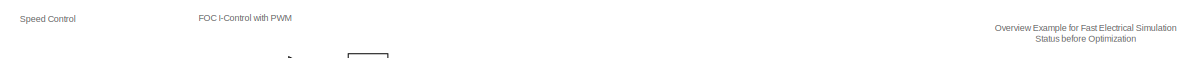
[diagram: root canvas - part 1/3, full width, top band]
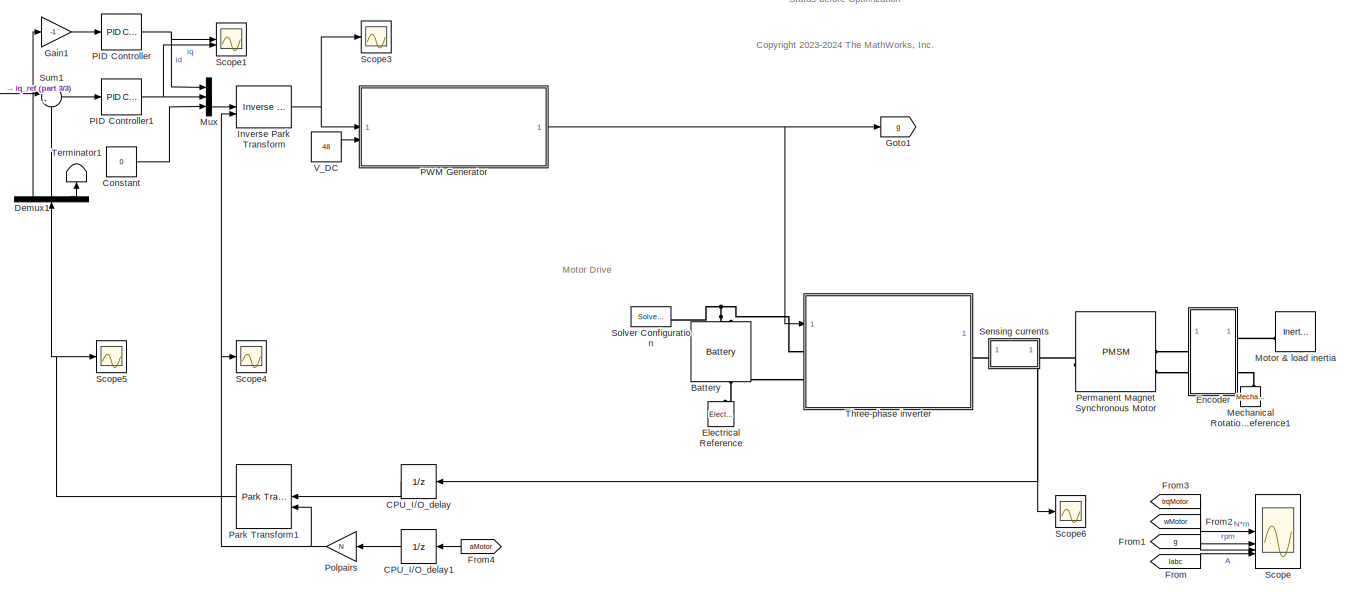
[diagram: root canvas - part 2/3, most of the canvas]
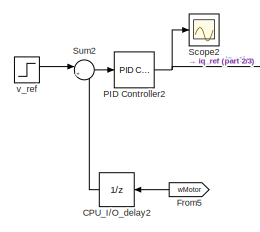
[diagram: root canvas - part 3/3, top left region]
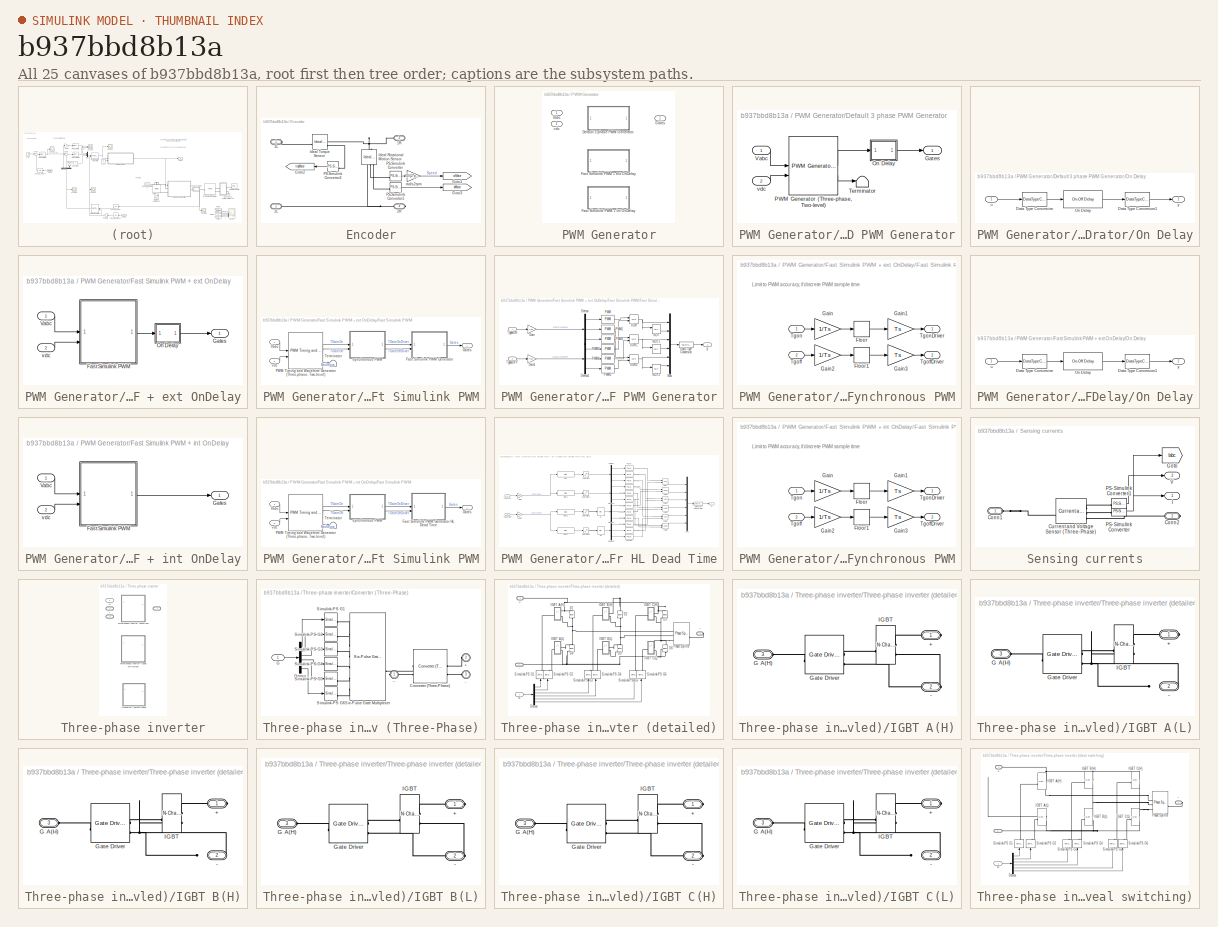
[diagram: thumbnail index - all 25 canvases of the model, root first then tree order]
MODEL slx_b937bbd8b13a
KIND model
CONFIG AbsTol = 1e-3
CONFIG EnableMultiTasking = off
CONFIG FixedStep = Ts
CONFIG MaxStep = auto
CONFIG MinStep = auto
CONFIG PreLoadFcn = % Control parameters\nTs = 2e-6;   % Fundamental sample time\nfsw = 2e3;   % Switching frequency (Hz)\nfc = fsw; % Control loop frequency (Hz)\nTsc = 1/fc;  % Control loop sample time\n\n% PMSM parameters \nPM = 0.03; % Permanent magnet flux linkage\nLd = 2e-4;  % d-axis inductance\nLq = 2e-4;  % q-axis inductance\nL0 = 2e-4;  % 0-axis inductance\nRs = 0.013; % Stator resistance\nN = 6; % Number of pole pairs...<+353ch>
CONFIG RelTol = 1e-3
CONFIG SampleTimeConstraint = Unconstrained
CONFIG SolverName = ode14x
CONFIG StartTime = 0.0
CONFIG StopFcn = out.SimulationMetadata.TimingInfo
CONFIG StopTime = 0.2
BLOCK [Reference] Battery  REF=batteryecm_lib/Battery
  NameLocation = right
  SourceBlock = batteryecm_lib/Battery
  SourceType = Battery
BLOCK [UnitDelay] CPU_I//O_delay
  HasFrameUpgradeWarning = on
  SampleTime = Tsc
BLOCK [UnitDelay] CPU_I//O_delay1
  HasFrameUpgradeWarning = on
  SampleTime = Tsc
BLOCK [UnitDelay] CPU_I//O_delay2
  HasFrameUpgradeWarning = on
  SampleTime = Tsc
BLOCK [Constant] Constant
  Value = 0
BLOCK [Demux] Demux1
  NameLocation = right
  Outputs = 3
BLOCK [Reference] Electrical Reference  REF=fl_lib/Electrical/Electrical Elements/Electrical Reference
  NameLocation = right
  SourceBlock = fl_lib/Electrical/Electrical Elements/Electrical Reference
  SourceType = Electrical Reference
BLOCK [SubSystem] Encoder
BLOCK [PMIOPort] Encoder/1L
  Side = Left
BLOCK [PMIOPort] Encoder/1R
  Port = 3
  Side = Right
BLOCK [PMIOPort] Encoder/2L
  Port = 2
  Side = Left
BLOCK [PMIOPort] Encoder/2R
  Port = 4
  Side = Right
BLOCK [Goto] Encoder/Goto1
  GotoTag = wMotor
  NameLocation = top
  TagVisibility = global
BLOCK [Goto] Encoder/Goto2
  GotoTag = trqMotor
  TagVisibility = global
BLOCK [Goto] Encoder/Goto3
  GotoTag = aMotor
  NameLocation = top
  TagVisibility = global
BLOCK [Reference] Encoder/Ideal Rotational Motion Sensor  REF=fl_lib/Mechanical/Mechanical Sensors/Ideal Rotational
Motion Sensor
  NameLocation = right
  SourceBlock = fl_lib/Mechanical/Mechanical Sensors/Ideal Rotational\nMotion Sensor
  SourceType = Ideal Rotational\nMotion Sensor
BLOCK [Reference] Encoder/Ideal Torque Sensor  REF=fl_lib/Mechanical/Mechanical Sensors/Ideal Torque Sensor
  SourceBlock = fl_lib/Mechanical/Mechanical Sensors/Ideal Torque Sensor
  SourceType = Ideal Torque Sensor
BLOCK [Reference] Encoder/PS-Simulink Converter  REF=nesl_utility/PS-Simulink
Converter
  SourceBlock = nesl_utility/PS-Simulink\nConverter
  SourceType = PS-Simulink\nConverter
BLOCK [Reference] Encoder/PS-Simulink Converter1  REF=nesl_utility/PS-Simulink
Converter
  SourceBlock = nesl_utility/PS-Simulink\nConverter
  SourceType = PS-Simulink\nConverter
BLOCK [Reference] Encoder/PS-Simulink Converter2  REF=nesl_utility/PS-Simulink
Converter
  NameLocation = top
  SourceBlock = nesl_utility/PS-Simulink\nConverter
  SourceType = PS-Simulink\nConverter
BLOCK [Gain] Encoder/rad//s2rpm
  Gain = 60/(2*pi)
BLOCK [From] From
  GotoTag = Iabc
  TagVisibility = global
BLOCK [From] From1
  GotoTag = g
  TagVisibility = global
BLOCK [From] From2
  GotoTag = wMotor
  TagVisibility = global
BLOCK [From] From3
  GotoTag = trqMotor
  TagVisibility = global
BLOCK [From] From4
  GotoTag = aMotor
  TagVisibility = global
BLOCK [From] From5
  GotoTag = wMotor
  TagVisibility = global
BLOCK [Gain] Gain1
  Gain = -1
BLOCK [Goto] Goto1
  GotoTag = g
  TagVisibility = global
BLOCK [Reference] Inverse Park Transform  REF=eeTransforms/Inverse
Park Transform
  LibrarySourceBlock = eePmsmFieldOrientedControl/PMSM Field-Oriented\nControl/PWM/Inverse\nPark Transform
  SourceBlock = eeTransforms/Inverse\nPark Transform
  SourceType = Inverse Park Transform
BLOCK [Reference] Mechanical Rotational Reference1  REF=fl_lib/Mechanical/Rotational Elements/Mechanical
Rotational Reference
  NameLocation = right
  SourceBlock = fl_lib/Mechanical/Rotational Elements/Mechanical\nRotational Reference
  SourceType = Mechanical\nRotational Reference
BLOCK [Reference] Motor & load inertia  REF=fl_lib/Mechanical/Rotational Elements/Inertia
  SourceBlock = fl_lib/Mechanical/Rotational Elements/Inertia
  SourceType = Inertia
BLOCK [Mux] Mux
  DisplayOption = bar
  Inputs = 3
BLOCK [Reference] PID Controller  REF=slpidlib/PID Controller
  LibrarySourceBlock = simulink/Continuous/PID Controller
  SourceBlock = slpidlib/PID Controller
  SourceType = PID 1dof
BLOCK [Reference] PID Controller1  REF=slpidlib/PID Controller
  LibrarySourceBlock = simulink/Continuous/PID Controller
  SourceBlock = slpidlib/PID Controller
  SourceType = PID 1dof
BLOCK [Reference] PID Controller2  REF=slpidlib/PID Controller
  LibrarySourceBlock = simulink/Continuous/PID Controller
  SourceBlock = slpidlib/PID Controller
  SourceType = PID 1dof
BLOCK [SubSystem] PWM Generator
  LabelModeActiveChoice = Var1
  Variant = on
  VariantControl = PWM Generator
  VariantControlMode = label
BLOCK [SubSystem] PWM Generator/Default 3 phase PWM Generator
  VariantControl = Var1
BLOCK [Outport] PWM Generator/Default 3 phase PWM Generator/Gates
BLOCK [SubSystem] PWM Generator/Default 3 phase PWM Generator/On Delay
BLOCK [DataTypeConversion] PWM Generator/Default 3 phase PWM Generator/On Delay/Data Type Conversion
  OutDataTypeStr = boolean
  RndMeth = Floor
  SaturateOnIntegerOverflow = off
BLOCK [DataTypeConversion] PWM Generator/Default 3 phase PWM Generator/On Delay/Data Type Conversion1
  OutDataTypeStr = double
  RndMeth = Floor
  SaturateOnIntegerOverflow = off
BLOCK [Reference] PWM Generator/Default 3 phase PWM Generator/On Delay/On Delay  REF=eeGeneralControl/On-Off Delay
  LibrarySourceBlock = ee_sl_lib/General Control/On-Off Delay
  SourceBlock = eeGeneralControl/On-Off Delay
  SourceType = On-Off Delay
BLOCK [Inport] PWM Generator/Default 3 phase PWM Generator/On Delay/u
BLOCK [Outport] PWM Generator/Default 3 phase PWM Generator/On Delay/y
BLOCK [Reference] PWM Generator/Default 3 phase PWM Generator/PWM Generator (Three-phase, Two-level)  REF=eePwmGeneratorTwoLevel/PWM Generator
(Three-phase, Two-level)
  LibrarySourceBlock = ee_sl_lib/Pulse Width\nModulation/PWM Generator\n(Three-phase, Two-level)
  SourceBlock = eePwmGeneratorTwoLevel/PWM Generator\n(Three-phase, Two-level)
  SourceType = PWM Generator (three-phase, two-level)
BLOCK [Terminator] PWM Generator/Default 3 phase PWM Generator/Terminator
BLOCK [Inport] PWM Generator/Default 3 phase PWM Generator/Vabc
BLOCK [Inport] PWM Generator/Default 3 phase PWM Generator/vdc
  Port = 2
BLOCK [SubSystem] PWM Generator/Fast Simulink PWM + ext OnDelay
  VariantControl = Var2
BLOCK [SubSystem] PWM Generator/Fast Simulink PWM + ext OnDelay/Fast Simulink PWM
BLOCK [SubSystem] PWM Generator/Fast Simulink PWM + ext OnDelay/Fast Simulink PWM/Fast Simulink PWM Generator
  ClipboardFcn = set_param(bdroot,'FixedStep','Ts');\nset_param([bdroot,'/SolverConfiguration'],'LocalSolverSampleTime','Ts');
  VariantControl = PWM == PWMType.FastSimulinkPWMGen
BLOCK [DataTypeConversion] PWM Generator/Fast Simulink PWM + ext OnDelay/Fast Simulink PWM/Fast Simulink PWM Generator/Data Type Conversion
  RndMeth = Floor
  SaturateOnIntegerOverflow = off
BLOCK [Demux] PWM Generator/Fast Simulink PWM + ext OnDelay/Fast Simulink PWM/Fast Simulink PWM Generator/Demux
  Outputs = 3
BLOCK [Demux] PWM Generator/Fast Simulink PWM + ext OnDelay/Fast Simulink PWM/Fast Simulink PWM Generator/Demux1
  Outputs = 3
BLOCK [Gain] PWM Generator/Fast Simulink PWM + ext OnDelay/Fast Simulink PWM/Fast Simulink PWM Generator/Gain
  Gain = fsw
BLOCK [Gain] PWM Generator/Fast Simulink PWM + ext OnDelay/Fast Simulink PWM/Fast Simulink PWM Generator/Gain1
  Gain = fsw
BLOCK [Mux] PWM Generator/Fast Simulink PWM + ext OnDelay/Fast Simulink PWM/Fast Simulink PWM Generator/Mux
  DisplayOption = bar
  Inputs = 6
BLOCK [Logic] PWM Generator/Fast Simulink PWM + ext OnDelay/Fast Simulink PWM/Fast Simulink PWM Generator/NOT
  AllPortsSameDT = off
  IconShape = distinctive
  Operator = NOT
  OutDataTypeStr = boolean
BLOCK [Logic] PWM Generator/Fast Simulink PWM + ext OnDelay/Fast Simulink PWM/Fast Simulink PWM Generator/NOT1
  AllPortsSameDT = off
  IconShape = distinctive
  Operator = NOT
  OutDataTypeStr = boolean
BLOCK [Logic] PWM Generator/Fast Simulink PWM + ext OnDelay/Fast Simulink PWM/Fast Simulink PWM Generator/NOT2
  AllPortsSameDT = off
  IconShape = distinctive
  Operator = NOT
  OutDataTypeStr = boolean
BLOCK [Reference] PWM Generator/Fast Simulink PWM + ext OnDelay/Fast Simulink PWM/Fast Simulink PWM Generator/PWM  REF=simulink/Discontinuities/PWM
  DisableCoverage = on
  SourceBlock = simulink/Discontinuities/PWM
  SourceType = PWM
BLOCK [Reference] PWM Generator/Fast Simulink PWM + ext OnDelay/Fast Simulink PWM/Fast Simulink PWM Generator/PWM1  REF=simulink/Discontinuities/PWM
  DisableCoverage = on
  SourceBlock = simulink/Discontinuities/PWM
  SourceType = PWM
BLOCK [Reference] PWM Generator/Fast Simulink PWM + ext OnDelay/Fast Simulink PWM/Fast Simulink PWM Generator/PWM2  REF=simulink/Discontinuities/PWM
  DisableCoverage = on
  SourceBlock = simulink/Discontinuities/PWM
  SourceType = PWM
BLOCK [Reference] PWM Generator/Fast Simulink PWM + ext OnDelay/Fast Simulink PWM/Fast Simulink PWM Generator/PWM3  REF=simulink/Discontinuities/PWM
  DisableCoverage = on
  SourceBlock = simulink/Discontinuities/PWM
  SourceType = PWM
BLOCK [Reference] PWM Generator/Fast Simulink PWM + ext OnDelay/Fast Simulink PWM/Fast Simulink PWM Generator/PWM4  REF=simulink/Discontinuities/PWM
  DisableCoverage = on
  SourceBlock = simulink/Discontinuities/PWM
  SourceType = PWM
BLOCK [Reference] PWM Generator/Fast Simulink PWM + ext OnDelay/Fast Simulink PWM/Fast Simulink PWM Generator/PWM5  REF=simulink/Discontinuities/PWM
  DisableCoverage = on
  SourceBlock = simulink/Discontinuities/PWM
  SourceType = PWM
BLOCK [Inport] PWM Generator/Fast Simulink PWM + ext OnDelay/Fast Simulink PWM/Fast Simulink PWM Generator/TgabcOFF
  Port = 2
BLOCK [Inport] PWM Generator/Fast Simulink PWM + ext OnDelay/Fast Simulink PWM/Fast Simulink PWM Generator/TgabcON
BLOCK [Logic] PWM Generator/Fast Simulink PWM + ext OnDelay/Fast Simulink PWM/Fast Simulink PWM Generator/XOR
  AllPortsSameDT = off
  IconShape = distinctive
  Operator = XOR
  OutDataTypeStr = boolean
BLOCK [Logic] PWM Generator/Fast Simulink PWM + ext OnDelay/Fast Simulink PWM/Fast Simulink PWM Generator/XOR1
  AllPortsSameDT = off
  IconShape = distinctive
  Operator = XOR
  OutDataTypeStr = boolean
BLOCK [Logic] PWM Generator/Fast Simulink PWM + ext OnDelay/Fast Simulink PWM/Fast Simulink PWM Generator/XOR2
  AllPortsSameDT = off
  IconShape = distinctive
  Operator = XOR
  OutDataTypeStr = boolean
BLOCK [Outport] PWM Generator/Fast Simulink PWM + ext OnDelay/Fast Simulink PWM/Fast Simulink PWM Generator/g
BLOCK [Outport] PWM Generator/Fast Simulink PWM + ext OnDelay/Fast Simulink PWM/Gates
BLOCK [Reference] PWM Generator/Fast Simulink PWM + ext OnDelay/Fast Simulink PWM/PWM Timing and Waveform Generator (Three-phase, Two-level)  REF=eePwmGeneratorTwoLevel/PWM Timing and Waveform
Generator
(Three-phase, Two-level)
  SourceBlock = eePwmGeneratorTwoLevel/PWM Timing and Waveform\nGenerator\n(Three-phase, Two-level)
  SourceType = PWM Timing and Waveform Generator (Three-phase, Two-level)
BLOCK [Terminator] PWM Generator/Fast Simulink PWM + ext OnDelay/Fast Simulink PWM/Terminator
BLOCK [Inport] PWM Generator/Fast Simulink PWM + ext OnDelay/Fast Simulink PWM/Vabc
BLOCK [SubSystem] PWM Generator/Fast Simulink PWM + ext OnDelay/Fast Simulink PWM/synchronous PWM
  VariantControl = PWMAccuracy == PWMAccuracyType.Sync
BLOCK [Rounding] PWM Generator/Fast Simulink PWM + ext OnDelay/Fast Simulink PWM/synchronous PWM/Floor
  Operator = ceil
BLOCK [Rounding] PWM Generator/Fast Simulink PWM + ext OnDelay/Fast Simulink PWM/synchronous PWM/Floor1
BLOCK [Gain] PWM Generator/Fast Simulink PWM + ext OnDelay/Fast Simulink PWM/synchronous PWM/Gain
  Gain = 1/Ts
BLOCK [Gain] PWM Generator/Fast Simulink PWM + ext OnDelay/Fast Simulink PWM/synchronous PWM/Gain1
  Gain = Ts
BLOCK [Gain] PWM Generator/Fast Simulink PWM + ext OnDelay/Fast Simulink PWM/synchronous PWM/Gain2
  Gain = 1/Ts
BLOCK [Gain] PWM Generator/Fast Simulink PWM + ext OnDelay/Fast Simulink PWM/synchronous PWM/Gain3
  Gain = Ts
BLOCK [Inport] PWM Generator/Fast Simulink PWM + ext OnDelay/Fast Simulink PWM/synchronous PWM/Tgoff
  Port = 2
BLOCK [Outport] PWM Generator/Fast Simulink PWM + ext OnDelay/Fast Simulink PWM/synchronous PWM/TgoffDriver
  Port = 2
BLOCK [Inport] PWM Generator/Fast Simulink PWM + ext OnDelay/Fast Simulink PWM/synchronous PWM/Tgon
BLOCK [Outport] PWM Generator/Fast Simulink PWM + ext OnDelay/Fast Simulink PWM/synchronous PWM/TgonDriver
BLOCK [Inport] PWM Generator/Fast Simulink PWM + ext OnDelay/Fast Simulink PWM/vdc
  Port = 2
BLOCK [Outport] PWM Generator/Fast Simulink PWM + ext OnDelay/Gates
BLOCK [SubSystem] PWM Generator/Fast Simulink PWM + ext OnDelay/On Delay
BLOCK [DataTypeConversion] PWM Generator/Fast Simulink PWM + ext OnDelay/On Delay/Data Type Conversion
  OutDataTypeStr = boolean
  RndMeth = Floor
  SaturateOnIntegerOverflow = off
BLOCK [DataTypeConversion] PWM Generator/Fast Simulink PWM + ext OnDelay/On Delay/Data Type Conversion1
  OutDataTypeStr = double
  RndMeth = Floor
  SaturateOnIntegerOverflow = off
BLOCK [Reference] PWM Generator/Fast Simulink PWM + ext OnDelay/On Delay/On Delay  REF=eeGeneralControl/On-Off Delay
  LibrarySourceBlock = ee_sl_lib/General Control/On-Off Delay
  SourceBlock = eeGeneralControl/On-Off Delay
  SourceType = On-Off Delay
BLOCK [Inport] PWM Generator/Fast Simulink PWM + ext OnDelay/On Delay/u
BLOCK [Outport] PWM Generator/Fast Simulink PWM + ext OnDelay/On Delay/y
BLOCK [Inport] PWM Generator/Fast Simulink PWM + ext OnDelay/Vabc
BLOCK [Inport] PWM Generator/Fast Simulink PWM + ext OnDelay/vdc
  Port = 2
BLOCK [SubSystem] PWM Generator/Fast Simulink PWM + int OnDelay
  VariantControl = Var3
BLOCK [SubSystem] PWM Generator/Fast Simulink PWM + int OnDelay/Fast Simulink PWM
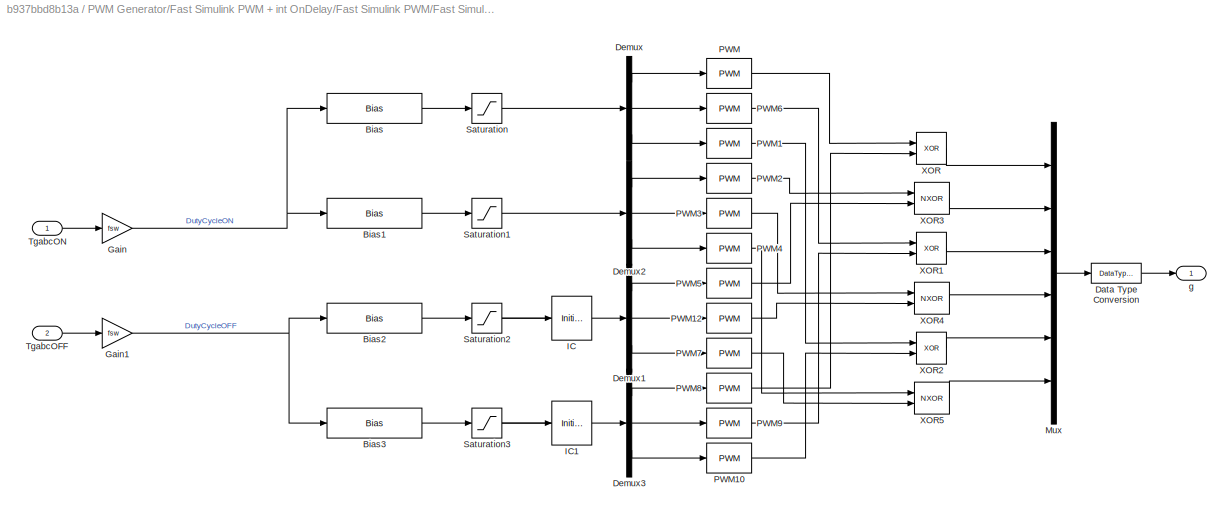
BLOCK [SubSystem] PWM Generator/Fast Simulink PWM + int OnDelay/Fast Simulink PWM/Fast Simulink PWM Generator HL Dead Time
  VariantControl = PWM == PWMType.FastSimulinkPWMGenHighLowDeadTime
BLOCK [Bias] PWM Generator/Fast Simulink PWM + int OnDelay/Fast Simulink PWM/Fast Simulink PWM Generator HL Dead Time/Bias
  Bias = T_Dead/2*fsw
  SaturateOnIntegerOverflow = off
BLOCK [Bias] PWM Generator/Fast Simulink PWM + int OnDelay/Fast Simulink PWM/Fast Simulink PWM Generator HL Dead Time/Bias1
  Bias = -T_Dead/2*fsw
  SaturateOnIntegerOverflow = off
BLOCK [Bias] PWM Generator/Fast Simulink PWM + int OnDelay/Fast Simulink PWM/Fast Simulink PWM Generator HL Dead Time/Bias2
  Bias = T_Dead/2*fsw
  SaturateOnIntegerOverflow = off
BLOCK [Bias] PWM Generator/Fast Simulink PWM + int OnDelay/Fast Simulink PWM/Fast Simulink PWM Generator HL Dead Time/Bias3
  Bias = -T_Dead/2*fsw
  SaturateOnIntegerOverflow = off
BLOCK [DataTypeConversion] PWM Generator/Fast Simulink PWM + int OnDelay/Fast Simulink PWM/Fast Simulink PWM Generator HL Dead Time/Data Type Conversion
  RndMeth = Floor
  SaturateOnIntegerOverflow = off
BLOCK [Demux] PWM Generator/Fast Simulink PWM + int OnDelay/Fast Simulink PWM/Fast Simulink PWM Generator HL Dead Time/Demux
  Outputs = 3
BLOCK [Demux] PWM Generator/Fast Simulink PWM + int OnDelay/Fast Simulink PWM/Fast Simulink PWM Generator HL Dead Time/Demux1
  Outputs = 3
BLOCK [Demux] PWM Generator/Fast Simulink PWM + int OnDelay/Fast Simulink PWM/Fast Simulink PWM Generator HL Dead Time/Demux2
  Outputs = 3
BLOCK [Demux] PWM Generator/Fast Simulink PWM + int OnDelay/Fast Simulink PWM/Fast Simulink PWM Generator HL Dead Time/Demux3
  Outputs = 3
BLOCK [Gain] PWM Generator/Fast Simulink PWM + int OnDelay/Fast Simulink PWM/Fast Simulink PWM Generator HL Dead Time/Gain
  Gain = fsw
BLOCK [Gain] PWM Generator/Fast Simulink PWM + int OnDelay/Fast Simulink PWM/Fast Simulink PWM Generator HL Dead Time/Gain1
  Gain = fsw
BLOCK [InitialCondition] PWM Generator/Fast Simulink PWM + int OnDelay/Fast Simulink PWM/Fast Simulink PWM Generator HL Dead Time/IC
  Value = [0 0 0]
BLOCK [InitialCondition] PWM Generator/Fast Simulink PWM + int OnDelay/Fast Simulink PWM/Fast Simulink PWM Generator HL Dead Time/IC1
  Value = [0 0 0]
BLOCK [Mux] PWM Generator/Fast Simulink PWM + int OnDelay/Fast Simulink PWM/Fast Simulink PWM Generator HL Dead Time/Mux
  DisplayOption = bar
  Inputs = 6
BLOCK [Reference] PWM Generator/Fast Simulink PWM + int OnDelay/Fast Simulink PWM/Fast Simulink PWM Generator HL Dead Time/PWM  REF=simulink/Discontinuities/PWM
  DisableCoverage = on
  SourceBlock = simulink/Discontinuities/PWM
  SourceType = PWM
BLOCK [Reference] PWM Generator/Fast Simulink PWM + int OnDelay/Fast Simulink PWM/Fast Simulink PWM Generator HL Dead Time/PWM1  REF=simulink/Discontinuities/PWM
  DisableCoverage = on
  SourceBlock = simulink/Discontinuities/PWM
  SourceType = PWM
BLOCK [Reference] PWM Generator/Fast Simulink PWM + int OnDelay/Fast Simulink PWM/Fast Simulink PWM Generator HL Dead Time/PWM10  REF=simulink/Discontinuities/PWM
  DisableCoverage = on
  SourceBlock = simulink/Discontinuities/PWM
  SourceType = PWM
BLOCK [Reference] PWM Generator/Fast Simulink PWM + int OnDelay/Fast Simulink PWM/Fast Simulink PWM Generator HL Dead Time/PWM12  REF=simulink/Discontinuities/PWM
  DisableCoverage = on
  SourceBlock = simulink/Discontinuities/PWM
  SourceType = PWM
BLOCK [Reference] PWM Generator/Fast Simulink PWM + int OnDelay/Fast Simulink PWM/Fast Simulink PWM Generator HL Dead Time/PWM2  REF=simulink/Discontinuities/PWM
  DisableCoverage = on
  SourceBlock = simulink/Discontinuities/PWM
  SourceType = PWM
BLOCK [Reference] PWM Generator/Fast Simulink PWM + int OnDelay/Fast Simulink PWM/Fast Simulink PWM Generator HL Dead Time/PWM3  REF=simulink/Discontinuities/PWM
  DisableCoverage = on
  SourceBlock = simulink/Discontinuities/PWM
  SourceType = PWM
BLOCK [Reference] PWM Generator/Fast Simulink PWM + int OnDelay/Fast Simulink PWM/Fast Simulink PWM Generator HL Dead Time/PWM4  REF=simulink/Discontinuities/PWM
  DisableCoverage = on
  SourceBlock = simulink/Discontinuities/PWM
  SourceType = PWM
BLOCK [Reference] PWM Generator/Fast Simulink PWM + int OnDelay/Fast Simulink PWM/Fast Simulink PWM Generator HL Dead Time/PWM5  REF=simulink/Discontinuities/PWM
  DisableCoverage = on
  SourceBlock = simulink/Discontinuities/PWM
  SourceType = PWM
BLOCK [Reference] PWM Generator/Fast Simulink PWM + int OnDelay/Fast Simulink PWM/Fast Simulink PWM Generator HL Dead Time/PWM6  REF=simulink/Discontinuities/PWM
  DisableCoverage = on
  SourceBlock = simulink/Discontinuities/PWM
  SourceType = PWM
BLOCK [Reference] PWM Generator/Fast Simulink PWM + int OnDelay/Fast Simulink PWM/Fast Simulink PWM Generator HL Dead Time/PWM7  REF=simulink/Discontinuities/PWM
  DisableCoverage = on
  SourceBlock = simulink/Discontinuities/PWM
  SourceType = PWM
BLOCK [Reference] PWM Generator/Fast Simulink PWM + int OnDelay/Fast Simulink PWM/Fast Simulink PWM Generator HL Dead Time/PWM8  REF=simulink/Discontinuities/PWM
  DisableCoverage = on
  SourceBlock = simulink/Discontinuities/PWM
  SourceType = PWM
BLOCK [Reference] PWM Generator/Fast Simulink PWM + int OnDelay/Fast Simulink PWM/Fast Simulink PWM Generator HL Dead Time/PWM9  REF=simulink/Discontinuities/PWM
  DisableCoverage = on
  SourceBlock = simulink/Discontinuities/PWM
  SourceType = PWM
BLOCK [Saturate] PWM Generator/Fast Simulink PWM + int OnDelay/Fast Simulink PWM/Fast Simulink PWM Generator HL Dead Time/Saturation
  LowerLimit = 0
  UpperLimit = 1/2
BLOCK [Saturate] PWM Generator/Fast Simulink PWM + int OnDelay/Fast Simulink PWM/Fast Simulink PWM Generator HL Dead Time/Saturation1
  LowerLimit = 0
  UpperLimit = 1/2
BLOCK [Saturate] PWM Generator/Fast Simulink PWM + int OnDelay/Fast Simulink PWM/Fast Simulink PWM Generator HL Dead Time/Saturation2
  LowerLimit = 1/2
  UpperLimit = 1
BLOCK [Saturate] PWM Generator/Fast Simulink PWM + int OnDelay/Fast Simulink PWM/Fast Simulink PWM Generator HL Dead Time/Saturation3
  LowerLimit = 1/2
  UpperLimit = 1
BLOCK [Inport] PWM Generator/Fast Simulink PWM + int OnDelay/Fast Simulink PWM/Fast Simulink PWM Generator HL Dead Time/TgabcOFF
  Port = 2
BLOCK [Inport] PWM Generator/Fast Simulink PWM + int OnDelay/Fast Simulink PWM/Fast Simulink PWM Generator HL Dead Time/TgabcON
BLOCK [Logic] PWM Generator/Fast Simulink PWM + int OnDelay/Fast Simulink PWM/Fast Simulink PWM Generator HL Dead Time/XOR
  AllPortsSameDT = off
  IconShape = distinctive
  Operator = XOR
  OutDataTypeStr = boolean
BLOCK [Logic] PWM Generator/Fast Simulink PWM + int OnDelay/Fast Simulink PWM/Fast Simulink PWM Generator HL Dead Time/XOR1
  AllPortsSameDT = off
  IconShape = distinctive
  Operator = XOR
  OutDataTypeStr = boolean
BLOCK [Logic] PWM Generator/Fast Simulink PWM + int OnDelay/Fast Simulink PWM/Fast Simulink PWM Generator HL Dead Time/XOR2
  AllPortsSameDT = off
  IconShape = distinctive
  Operator = XOR
  OutDataTypeStr = boolean
BLOCK [Logic] PWM Generator/Fast Simulink PWM + int OnDelay/Fast Simulink PWM/Fast Simulink PWM Generator HL Dead Time/XOR3
  AllPortsSameDT = off
  IconShape = distinctive
  Operator = NXOR
  OutDataTypeStr = boolean
BLOCK [Logic] PWM Generator/Fast Simulink PWM + int OnDelay/Fast Simulink PWM/Fast Simulink PWM Generator HL Dead Time/XOR4
  AllPortsSameDT = off
  IconShape = distinctive
  Operator = NXOR
  OutDataTypeStr = boolean
BLOCK [Logic] PWM Generator/Fast Simulink PWM + int OnDelay/Fast Simulink PWM/Fast Simulink PWM Generator HL Dead Time/XOR5
  AllPortsSameDT = off
  IconShape = distinctive
  Operator = NXOR
  OutDataTypeStr = boolean
BLOCK [Outport] PWM Generator/Fast Simulink PWM + int OnDelay/Fast Simulink PWM/Fast Simulink PWM Generator HL Dead Time/g
BLOCK [Outport] PWM Generator/Fast Simulink PWM + int OnDelay/Fast Simulink PWM/Gates
BLOCK [Reference] PWM Generator/Fast Simulink PWM + int OnDelay/Fast Simulink PWM/PWM Timing and Waveform Generator (Three-phase, Two-level)  REF=eePwmGeneratorTwoLevel/PWM Timing and Waveform
Generator
(Three-phase, Two-level)
  SourceBlock = eePwmGeneratorTwoLevel/PWM Timing and Waveform\nGenerator\n(Three-phase, Two-level)
  SourceType = PWM Timing and Waveform Generator (Three-phase, Two-level)
BLOCK [Terminator] PWM Generator/Fast Simulink PWM + int OnDelay/Fast Simulink PWM/Terminator
BLOCK [Inport] PWM Generator/Fast Simulink PWM + int OnDelay/Fast Simulink PWM/Vabc
BLOCK [SubSystem] PWM Generator/Fast Simulink PWM + int OnDelay/Fast Simulink PWM/synchronous PWM
  VariantControl = PWMAccuracy == PWMAccuracyType.Sync
BLOCK [Rounding] PWM Generator/Fast Simulink PWM + int OnDelay/Fast Simulink PWM/synchronous PWM/Floor
  Operator = ceil
BLOCK [Rounding] PWM Generator/Fast Simulink PWM + int OnDelay/Fast Simulink PWM/synchronous PWM/Floor1
BLOCK [Gain] PWM Generator/Fast Simulink PWM + int OnDelay/Fast Simulink PWM/synchronous PWM/Gain
  Gain = 1/Ts
BLOCK [Gain] PWM Generator/Fast Simulink PWM + int OnDelay/Fast Simulink PWM/synchronous PWM/Gain1
  Gain = Ts
BLOCK [Gain] PWM Generator/Fast Simulink PWM + int OnDelay/Fast Simulink PWM/synchronous PWM/Gain2
  Gain = 1/Ts
BLOCK [Gain] PWM Generator/Fast Simulink PWM + int OnDelay/Fast Simulink PWM/synchronous PWM/Gain3
  Gain = Ts
BLOCK [Inport] PWM Generator/Fast Simulink PWM + int OnDelay/Fast Simulink PWM/synchronous PWM/Tgoff
  Port = 2
BLOCK [Outport] PWM Generator/Fast Simulink PWM + int OnDelay/Fast Simulink PWM/synchronous PWM/TgoffDriver
  Port = 2
BLOCK [Inport] PWM Generator/Fast Simulink PWM + int OnDelay/Fast Simulink PWM/synchronous PWM/Tgon
BLOCK [Outport] PWM Generator/Fast Simulink PWM + int OnDelay/Fast Simulink PWM/synchronous PWM/TgonDriver
BLOCK [Inport] PWM Generator/Fast Simulink PWM + int OnDelay/Fast Simulink PWM/vdc
  Port = 2
BLOCK [Outport] PWM Generator/Fast Simulink PWM + int OnDelay/Gates
BLOCK [Inport] PWM Generator/Fast Simulink PWM + int OnDelay/Vabc
BLOCK [Inport] PWM Generator/Fast Simulink PWM + int OnDelay/vdc
  Port = 2
BLOCK [Outport] PWM Generator/Gates
BLOCK [Inport] PWM Generator/Vabc
BLOCK [Inport] PWM Generator/vdc
  Port = 2
BLOCK [Reference] Park Transform1  REF=eeTransforms/Park Transform
  LibrarySourceBlock = eePmsmFieldOrientedControl/PMSM Field-Oriented\nControl/Inner loop control/Park Transform
  NameLocation = top
  SourceBlock = eeTransforms/Park Transform
  SourceType = Park Transform
BLOCK [Reference] Permanent Magnet Synchronous Motor  REF=ee_lib/Electromechanical/Permanent Magnet/PMSM
  SourceBlock = ee_lib/Electromechanical/Permanent Magnet/PMSM
  SourceType = PMSM
BLOCK [Gain] Polpairs
  Gain = N
BLOCK [Scope] Scope
  Floating = off
  NumInputPorts = 4
  ScopeSpecificationString = Simulink.scopes.TimeScopeBlockCfg('CurrentConfiguration', extmgr.ConfigurationSet(extmgr.Configuration('Core','General UI',true),extmgr.Configuration('Core','Source UI',true),extmgr.Configuration('Sources','WiredSimulink',true),extmgr.Configuration('Visuals','Time Domain',true,'SerializedDisplays',{struct('MinYLimReal','-3.58247','MaxYLimReal','32.22775','YLabelReal','','MinYLimMag','0.00000','Max...<+3485ch>
BLOCK [Scope] Scope1
  Floating = off
  NumInputPorts = 2
  ScopeSpecificationString = Simulink.scopes.TimeScopeBlockCfg('CurrentConfiguration', extmgr.ConfigurationSet(extmgr.Configuration('Core','General UI',true),extmgr.Configuration('Core','Source UI',true),extmgr.Configuration('Sources','WiredSimulink',true,'DataLoggingVariableName','ScopeData1'),extmgr.Configuration('Visuals','Time Domain',true,'SerializedDisplays',{struct('MinYLimReal','-0.21506','MaxYLimReal','1.46356','YLab...<+1440ch>
BLOCK [Scope] Scope2
  Floating = off
  NumInputPorts = 1
  ScopeSpecificationString = Simulink.scopes.TimeScopeBlockCfg('CurrentConfiguration', extmgr.ConfigurationSet(extmgr.Configuration('Core','General UI',true),extmgr.Configuration('Core','Source UI',true),extmgr.Configuration('Sources','WiredSimulink',true,'DataLoggingVariableName','ScopeData2'),extmgr.Configuration('Visuals','Time Domain',true,'SerializedDisplays',{struct('MinYLimReal','-75.00000','MaxYLimReal','675.00000','Y...<+1455ch>
BLOCK [Scope] Scope3
  Floating = off
  NumInputPorts = 1
  ScopeSpecificationString = Simulink.scopes.TimeScopeBlockCfg('CurrentConfiguration', extmgr.ConfigurationSet(extmgr.Configuration('Core','General UI',true),extmgr.Configuration('Core','Source UI',true),extmgr.Configuration('Sources','WiredSimulink',true,'DataLoggingVariableName','ScopeData3'),extmgr.Configuration('Visuals','Time Domain',true,'SerializedDisplays',{struct('MinYLimReal','-62.60985','MaxYLimReal','65.56315','YL...<+1504ch>
BLOCK [Scope] Scope4
  Floating = off
  NumInputPorts = 1
  ScopeSpecificationString = Simulink.scopes.TimeScopeBlockCfg('CurrentConfiguration', extmgr.ConfigurationSet(extmgr.Configuration('Core','General UI',true),extmgr.Configuration('Core','Source UI',true),extmgr.Configuration('Sources','WiredSimulink',true,'DataLoggingVariableName','ScopeData1'),extmgr.Configuration('Visuals','Time Domain',true,'SerializedDisplays',{struct('MinYLimReal','-164.44278','MaxYLimReal','202.37748','...<+1529ch>
BLOCK [Scope] Scope5
  Floating = off
  NumInputPorts = 1
  ScopeSpecificationString = Simulink.scopes.TimeScopeBlockCfg('CurrentConfiguration', extmgr.ConfigurationSet(extmgr.Configuration('Core','General UI',true),extmgr.Configuration('Core','Source UI',true),extmgr.Configuration('Sources','WiredSimulink',true,'DataLoggingVariableName','ScopeData5'),extmgr.Configuration('Visuals','Time Domain',true,'SerializedDisplays',{struct('MinYLimReal','-164.44278','MaxYLimReal','202.37748','...<+1529ch>
BLOCK [Scope] Scope6
  Floating = off
  NumInputPorts = 1
  ScopeSpecificationString = Simulink.scopes.TimeScopeBlockCfg('CurrentConfiguration', extmgr.ConfigurationSet(extmgr.Configuration('Core','General UI',true),extmgr.Configuration('Core','Source UI',true),extmgr.Configuration('Sources','WiredSimulink',true,'DataLoggingVariableName','ScopeData3'),extmgr.Configuration('Visuals','Time Domain',true,'SerializedDisplays',{struct('MinYLimReal','-1229.34365','MaxYLimReal','696.30069',...<+1532ch>
BLOCK [SubSystem] Sensing currents
  PortSchema = {"entries":[{"content":{"sides":[{"content":{"connectorIds":["LConn1"]},"type":"ConnectorPlacement.EquallySpacedRectSide","uuid":"a2dbaf4d-2193-4bb5-9fa7-b2608b68c643"},{"content":{"connectorIds":["RConn1"],"side":"RIGHT"},"type":"ConnectorPlacement.EquallySpacedRectSide","uuid":"b7ee105c-d647-40c5-a17c-a62500552699"},{"content":{"side":"TOP"},"type":"ConnectorPlacement.EquallySpacedRectSide","uui...<+384ch>
BLOCK [PMIOPort] Sensing currents/Conn1
  Side = Left
BLOCK [PMIOPort] Sensing currents/Conn2
  Port = 2
  Side = Right
BLOCK [Reference] Sensing currents/Current and Voltage Sensor (Three-Phase)  REF=ee_lib/Sensors &
Transducers/Current and Voltage
Sensor (Three-Phase)
  SourceBlock = ee_lib/Sensors &\nTransducers/Current and Voltage\nSensor (Three-Phase)
  SourceType = Current and Voltage\nSensor (Three-Phase)
BLOCK [Goto] Sensing currents/Goto
  GotoTag = Iabc
  TagVisibility = global
BLOCK [Outport] Sensing currents/I
BLOCK [Reference] Sensing currents/PS-Simulink Converter  REF=nesl_utility/PS-Simulink
Converter
  SourceBlock = nesl_utility/PS-Simulink\nConverter
  SourceType = PS-Simulink\nConverter
BLOCK [Reference] Sensing currents/PS-Simulink Converter1  REF=nesl_utility/PS-Simulink
Converter
  SourceBlock = nesl_utility/PS-Simulink\nConverter
  SourceType = PS-Simulink\nConverter
BLOCK [Outport] Sensing currents/V
  Port = 2
BLOCK [Reference] Solver Configuration  REF=nesl_utility/Solver
Configuration
  SourceBlock = nesl_utility/Solver\nConfiguration
  SourceType = Solver\nConfiguration
BLOCK [Sum] Sum1
  Inputs = |+-
BLOCK [Sum] Sum2
  Inputs = |+-
BLOCK [Terminator] Terminator1
  NameLocation = right
BLOCK [SubSystem] Three-phase inverter
  LabelModeActiveChoice = IdealSwitching
  Variant = on
  VariantControl = Three-phase inverter
  VariantControlMode = label
BLOCK [PMIOPort] Three-phase inverter/+
  Port = 2
  Side = Left
BLOCK [PMIOPort] Three-phase inverter/-
  Port = 3
  Side = Left
BLOCK [SubSystem] Three-phase inverter/Converter (Three-Phase)
  VariantControl = Block
BLOCK [PMIOPort] Three-phase inverter/Converter (Three-Phase)/+
  Port = 2
  Side = Left
BLOCK [PMIOPort] Three-phase inverter/Converter (Three-Phase)/-
  Port = 3
  Side = Left
BLOCK [Reference] Three-phase inverter/Converter (Three-Phase)/Converter (Three-Phase)  REF=ee_lib/Semiconductors &
Converters/Converters/Converter
(Three-Phase)
  SourceBlock = ee_lib/Semiconductors &\nConverters/Converters/Converter\n(Three-Phase)
  SourceType = Converter\n(Three-Phase)
BLOCK [Demux] Three-phase inverter/Converter (Three-Phase)/Demux
  Outputs = 6
BLOCK [Inport] Three-phase inverter/Converter (Three-Phase)/G
BLOCK [Reference] Three-phase inverter/Converter (Three-Phase)/Simulink-PS G1  REF=nesl_utility/Simulink-PS
Converter
  SourceBlock = nesl_utility/Simulink-PS\nConverter
  SourceType = Simulink-PS\nConverter
BLOCK [Reference] Three-phase inverter/Converter (Three-Phase)/Simulink-PS G2  REF=nesl_utility/Simulink-PS
Converter
  SourceBlock = nesl_utility/Simulink-PS\nConverter
  SourceType = Simulink-PS\nConverter
BLOCK [Reference] Three-phase inverter/Converter (Three-Phase)/Simulink-PS G3  REF=nesl_utility/Simulink-PS
Converter
  NameLocation = top
  SourceBlock = nesl_utility/Simulink-PS\nConverter
  SourceType = Simulink-PS\nConverter
BLOCK [Reference] Three-phase inverter/Converter (Three-Phase)/Simulink-PS G4  REF=nesl_utility/Simulink-PS
Converter
  SourceBlock = nesl_utility/Simulink-PS\nConverter
  SourceType = Simulink-PS\nConverter
BLOCK [Reference] Three-phase inverter/Converter (Three-Phase)/Simulink-PS G5  REF=nesl_utility/Simulink-PS
Converter
  SourceBlock = nesl_utility/Simulink-PS\nConverter
  SourceType = Simulink-PS\nConverter
BLOCK [Reference] Three-phase inverter/Converter (Three-Phase)/Simulink-PS G6  REF=nesl_utility/Simulink-PS
Converter
  SourceBlock = nesl_utility/Simulink-PS\nConverter
  SourceType = Simulink-PS\nConverter
BLOCK [Reference] Three-phase inverter/Converter (Three-Phase)/Six-Pulse Gate Multiplexer  REF=ee_lib/Semiconductors &
Converters/Converters/Six-Pulse Gate
Multiplexer
  SourceBlock = ee_lib/Semiconductors &\nConverters/Converters/Six-Pulse Gate\nMultiplexer
  SourceType = Six-Pulse Gate\nMultiplexer
BLOCK [PMIOPort] Three-phase inverter/Converter (Three-Phase)/~
  Side = Right
BLOCK [Inport] Three-phase inverter/G
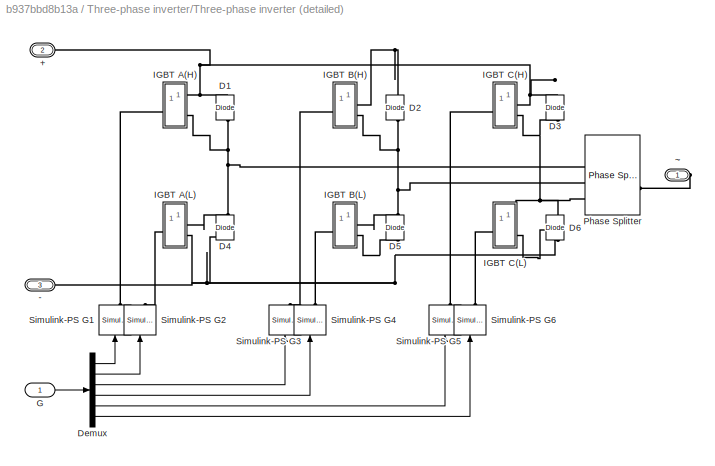
BLOCK [SubSystem] Three-phase inverter/Three-phase inverter (detailed)
  VariantControl = Detailed
BLOCK [PMIOPort] Three-phase inverter/Three-phase inverter (detailed)/+
  Port = 2
  Side = Left
  Tag = PMCPort
BLOCK [PMIOPort] Three-phase inverter/Three-phase inverter (detailed)/-
  Port = 3
  Side = Left
  Tag = PMCPort
BLOCK [Reference] Three-phase inverter/Three-phase inverter (detailed)/D1  REF=ee_lib/Semiconductors &
Converters/Diode
  NameLocation = right
  SourceBlock = ee_lib/Semiconductors &\nConverters/Diode
  SourceType = Diode
BLOCK [Reference] Three-phase inverter/Three-phase inverter (detailed)/D2  REF=ee_lib/Semiconductors &
Converters/Diode
  NameLocation = right
  SourceBlock = ee_lib/Semiconductors &\nConverters/Diode
  SourceType = Diode
BLOCK [Reference] Three-phase inverter/Three-phase inverter (detailed)/D3  REF=ee_lib/Semiconductors &
Converters/Diode
  NameLocation = right
  SourceBlock = ee_lib/Semiconductors &\nConverters/Diode
  SourceType = Diode
BLOCK [Reference] Three-phase inverter/Three-phase inverter (detailed)/D4  REF=ee_lib/Semiconductors &
Converters/Diode
  NameLocation = right
  SourceBlock = ee_lib/Semiconductors &\nConverters/Diode
  SourceType = Diode
BLOCK [Reference] Three-phase inverter/Three-phase inverter (detailed)/D5  REF=ee_lib/Semiconductors &
Converters/Diode
  NameLocation = right
  SourceBlock = ee_lib/Semiconductors &\nConverters/Diode
  SourceType = Diode
BLOCK [Reference] Three-phase inverter/Three-phase inverter (detailed)/D6  REF=ee_lib/Semiconductors &
Converters/Diode
  NameLocation = right
  SourceBlock = ee_lib/Semiconductors &\nConverters/Diode
  SourceType = Diode
BLOCK [Demux] Three-phase inverter/Three-phase inverter (detailed)/Demux
  Outputs = 6
BLOCK [Inport] Three-phase inverter/Three-phase inverter (detailed)/G
BLOCK [SubSystem] Three-phase inverter/Three-phase inverter (detailed)/IGBT A(H)
BLOCK [PMIOPort] Three-phase inverter/Three-phase inverter (detailed)/IGBT A(H)/+
  Side = Right
BLOCK [PMIOPort] Three-phase inverter/Three-phase inverter (detailed)/IGBT A(H)/-
  Port = 2
  Side = Right
BLOCK [PMIOPort] Three-phase inverter/Three-phase inverter (detailed)/IGBT A(H)/G A(H)
  Port = 3
  Side = Left
BLOCK [Reference] Three-phase inverter/Three-phase inverter (detailed)/IGBT A(H)/Gate Driver  REF=ee_lib/Semiconductors &
Converters/Gate Driver
  SourceBlock = ee_lib/Semiconductors &\nConverters/Gate Driver
  SourceType = Gate Driver
BLOCK [Reference] Three-phase inverter/Three-phase inverter (detailed)/IGBT A(H)/IGBT  REF=ee_lib/Semiconductors &
Converters/N-Channel IGBT
  SourceBlock = ee_lib/Semiconductors &\nConverters/N-Channel IGBT
  SourceType = N-Channel IGBT
BLOCK [SubSystem] Three-phase inverter/Three-phase inverter (detailed)/IGBT A(L)
BLOCK [PMIOPort] Three-phase inverter/Three-phase inverter (detailed)/IGBT A(L)/+
  Side = Right
BLOCK [PMIOPort] Three-phase inverter/Three-phase inverter (detailed)/IGBT A(L)/-
  Port = 2
  Side = Right
BLOCK [PMIOPort] Three-phase inverter/Three-phase inverter (detailed)/IGBT A(L)/G A(H)
  Port = 3
  Side = Left
BLOCK [Reference] Three-phase inverter/Three-phase inverter (detailed)/IGBT A(L)/Gate Driver  REF=ee_lib/Semiconductors &
Converters/Gate Driver
  SourceBlock = ee_lib/Semiconductors &\nConverters/Gate Driver
  SourceType = Gate Driver
BLOCK [Reference] Three-phase inverter/Three-phase inverter (detailed)/IGBT A(L)/IGBT  REF=ee_lib/Semiconductors &
Converters/N-Channel IGBT
  SourceBlock = ee_lib/Semiconductors &\nConverters/N-Channel IGBT
  SourceType = N-Channel IGBT
BLOCK [SubSystem] Three-phase inverter/Three-phase inverter (detailed)/IGBT B(H)
BLOCK [PMIOPort] Three-phase inverter/Three-phase inverter (detailed)/IGBT B(H)/+
  Side = Right
BLOCK [PMIOPort] Three-phase inverter/Three-phase inverter (detailed)/IGBT B(H)/-
  Port = 2
  Side = Right
BLOCK [PMIOPort] Three-phase inverter/Three-phase inverter (detailed)/IGBT B(H)/G A(H)
  Port = 3
  Side = Left
BLOCK [Reference] Three-phase inverter/Three-phase inverter (detailed)/IGBT B(H)/Gate Driver  REF=ee_lib/Semiconductors &
Converters/Gate Driver
  SourceBlock = ee_lib/Semiconductors &\nConverters/Gate Driver
  SourceType = Gate Driver
BLOCK [Reference] Three-phase inverter/Three-phase inverter (detailed)/IGBT B(H)/IGBT  REF=ee_lib/Semiconductors &
Converters/N-Channel IGBT
  SourceBlock = ee_lib/Semiconductors &\nConverters/N-Channel IGBT
  SourceType = N-Channel IGBT
BLOCK [SubSystem] Three-phase inverter/Three-phase inverter (detailed)/IGBT B(L)
BLOCK [PMIOPort] Three-phase inverter/Three-phase inverter (detailed)/IGBT B(L)/+
  Side = Right
BLOCK [PMIOPort] Three-phase inverter/Three-phase inverter (detailed)/IGBT B(L)/-
  Port = 2
  Side = Right
BLOCK [PMIOPort] Three-phase inverter/Three-phase inverter (detailed)/IGBT B(L)/G A(H)
  Port = 3
  Side = Left
BLOCK [Reference] Three-phase inverter/Three-phase inverter (detailed)/IGBT B(L)/Gate Driver  REF=ee_lib/Semiconductors &
Converters/Gate Driver
  SourceBlock = ee_lib/Semiconductors &\nConverters/Gate Driver
  SourceType = Gate Driver
BLOCK [Reference] Three-phase inverter/Three-phase inverter (detailed)/IGBT B(L)/IGBT  REF=ee_lib/Semiconductors &
Converters/N-Channel IGBT
  SourceBlock = ee_lib/Semiconductors &\nConverters/N-Channel IGBT
  SourceType = N-Channel IGBT
BLOCK [SubSystem] Three-phase inverter/Three-phase inverter (detailed)/IGBT C(H)
BLOCK [PMIOPort] Three-phase inverter/Three-phase inverter (detailed)/IGBT C(H)/+
  Side = Right
BLOCK [PMIOPort] Three-phase inverter/Three-phase inverter (detailed)/IGBT C(H)/-
  Port = 2
  Side = Right
BLOCK [PMIOPort] Three-phase inverter/Three-phase inverter (detailed)/IGBT C(H)/G A(H)
  Port = 3
  Side = Left
BLOCK [Reference] Three-phase inverter/Three-phase inverter (detailed)/IGBT C(H)/Gate Driver  REF=ee_lib/Semiconductors &
Converters/Gate Driver
  SourceBlock = ee_lib/Semiconductors &\nConverters/Gate Driver
  SourceType = Gate Driver
BLOCK [Reference] Three-phase inverter/Three-phase inverter (detailed)/IGBT C(H)/IGBT  REF=ee_lib/Semiconductors &
Converters/N-Channel IGBT
  SourceBlock = ee_lib/Semiconductors &\nConverters/N-Channel IGBT
  SourceType = N-Channel IGBT
BLOCK [SubSystem] Three-phase inverter/Three-phase inverter (detailed)/IGBT C(L)
BLOCK [PMIOPort] Three-phase inverter/Three-phase inverter (detailed)/IGBT C(L)/+
  Side = Right
BLOCK [PMIOPort] Three-phase inverter/Three-phase inverter (detailed)/IGBT C(L)/-
  Port = 2
  Side = Right
BLOCK [PMIOPort] Three-phase inverter/Three-phase inverter (detailed)/IGBT C(L)/G A(H)
  Port = 3
  Side = Left
BLOCK [Reference] Three-phase inverter/Three-phase inverter (detailed)/IGBT C(L)/Gate Driver  REF=ee_lib/Semiconductors &
Converters/Gate Driver
  SourceBlock = ee_lib/Semiconductors &\nConverters/Gate Driver
  SourceType = Gate Driver
BLOCK [Reference] Three-phase inverter/Three-phase inverter (detailed)/IGBT C(L)/IGBT  REF=ee_lib/Semiconductors &
Converters/N-Channel IGBT
  SourceBlock = ee_lib/Semiconductors &\nConverters/N-Channel IGBT
  SourceType = N-Channel IGBT
BLOCK [Reference] Three-phase inverter/Three-phase inverter (detailed)/Phase Splitter  REF=ee_lib/Connectors &
References/Phase Splitter
  SourceBlock = ee_lib/Connectors &\nReferences/Phase Splitter
  SourceType = Phase Splitter
BLOCK [Reference] Three-phase inverter/Three-phase inverter (detailed)/Simulink-PS G1  REF=nesl_utility/Simulink-PS
Converter
  NameLocation = right
  SourceBlock = nesl_utility/Simulink-PS\nConverter
  SourceType = Simulink-PS\nConverter
BLOCK [Reference] Three-phase inverter/Three-phase inverter (detailed)/Simulink-PS G2  REF=nesl_utility/Simulink-PS
Converter
  NameLocation = right
  SourceBlock = nesl_utility/Simulink-PS\nConverter
  SourceType = Simulink-PS\nConverter
BLOCK [Reference] Three-phase inverter/Three-phase inverter (detailed)/Simulink-PS G3  REF=nesl_utility/Simulink-PS
Converter
  NameLocation = left
  SourceBlock = nesl_utility/Simulink-PS\nConverter
  SourceType = Simulink-PS\nConverter
BLOCK [Reference] Three-phase inverter/Three-phase inverter (detailed)/Simulink-PS G4  REF=nesl_utility/Simulink-PS
Converter
  NameLocation = right
  SourceBlock = nesl_utility/Simulink-PS\nConverter
  SourceType = Simulink-PS\nConverter
BLOCK [Reference] Three-phase inverter/Three-phase inverter (detailed)/Simulink-PS G5  REF=nesl_utility/Simulink-PS
Converter
  NameLocation = right
  SourceBlock = nesl_utility/Simulink-PS\nConverter
  SourceType = Simulink-PS\nConverter
BLOCK [Reference] Three-phase inverter/Three-phase inverter (detailed)/Simulink-PS G6  REF=nesl_utility/Simulink-PS
Converter
  NameLocation = right
  SourceBlock = nesl_utility/Simulink-PS\nConverter
  SourceType = Simulink-PS\nConverter
BLOCK [PMIOPort] Three-phase inverter/Three-phase inverter (detailed)/~
  Side = Right
  Tag = PMCPort
BLOCK [SubSystem] Three-phase inverter/Three-phase inverter (ideal switching)
  VariantControl = IdealSwitching
BLOCK [PMIOPort] Three-phase inverter/Three-phase inverter (ideal switching)/+
  Port = 2
  Side = Left
  Tag = PMCPort
BLOCK [PMIOPort] Three-phase inverter/Three-phase inverter (ideal switching)/-
  Port = 3
  Side = Left
  Tag = PMCPort
BLOCK [Demux] Three-phase inverter/Three-phase inverter (ideal switching)/Demux
  Outputs = 6
BLOCK [Inport] Three-phase inverter/Three-phase inverter (ideal switching)/G
BLOCK [Reference] Three-phase inverter/Three-phase inverter (ideal switching)/IGBT A(H)  REF=ee_lib/Semiconductors &
Converters/IGBT
(Ideal,
Switching)
  SourceBlock = ee_lib/Semiconductors &\nConverters/IGBT\n(Ideal,\nSwitching)
  SourceType = IGBT\n(Ideal,\nSwitching)
BLOCK [Reference] Three-phase inverter/Three-phase inverter (ideal switching)/IGBT A(L)  REF=ee_lib/Semiconductors &
Converters/IGBT
(Ideal,
Switching)
  SourceBlock = ee_lib/Semiconductors &\nConverters/IGBT\n(Ideal,\nSwitching)
  SourceType = IGBT\n(Ideal,\nSwitching)
BLOCK [Reference] Three-phase inverter/Three-phase inverter (ideal switching)/IGBT B(H)  REF=ee_lib/Semiconductors &
Converters/IGBT
(Ideal,
Switching)
  SourceBlock = ee_lib/Semiconductors &\nConverters/IGBT\n(Ideal,\nSwitching)
  SourceType = IGBT\n(Ideal,\nSwitching)
BLOCK [Reference] Three-phase inverter/Three-phase inverter (ideal switching)/IGBT B(L)  REF=ee_lib/Semiconductors &
Converters/IGBT
(Ideal,
Switching)
  SourceBlock = ee_lib/Semiconductors &\nConverters/IGBT\n(Ideal,\nSwitching)
  SourceType = IGBT\n(Ideal,\nSwitching)
BLOCK [Reference] Three-phase inverter/Three-phase inverter (ideal switching)/IGBT C(H)  REF=ee_lib/Semiconductors &
Converters/IGBT
(Ideal,
Switching)
  SourceBlock = ee_lib/Semiconductors &\nConverters/IGBT\n(Ideal,\nSwitching)
  SourceType = IGBT\n(Ideal,\nSwitching)
BLOCK [Reference] Three-phase inverter/Three-phase inverter (ideal switching)/IGBT C(L)  REF=ee_lib/Semiconductors &
Converters/IGBT
(Ideal,
Switching)
  SourceBlock = ee_lib/Semiconductors &\nConverters/IGBT\n(Ideal,\nSwitching)
  SourceType = IGBT\n(Ideal,\nSwitching)
BLOCK [Reference] Three-phase inverter/Three-phase inverter (ideal switching)/Phase Splitter  REF=ee_lib/Connectors &
References/Phase Splitter
  SourceBlock = ee_lib/Connectors &\nReferences/Phase Splitter
  SourceType = Phase Splitter
BLOCK [Reference] Three-phase inverter/Three-phase inverter (ideal switching)/Simulink-PS G1  REF=nesl_utility/Simulink-PS
Converter
  NameLocation = right
  SourceBlock = nesl_utility/Simulink-PS\nConverter
  SourceType = Simulink-PS\nConverter
BLOCK [Reference] Three-phase inverter/Three-phase inverter (ideal switching)/Simulink-PS G2  REF=nesl_utility/Simulink-PS
Converter
  NameLocation = right
  SourceBlock = nesl_utility/Simulink-PS\nConverter
  SourceType = Simulink-PS\nConverter
BLOCK [Reference] Three-phase inverter/Three-phase inverter (ideal switching)/Simulink-PS G3  REF=nesl_utility/Simulink-PS
Converter
  NameLocation = left
  SourceBlock = nesl_utility/Simulink-PS\nConverter
  SourceType = Simulink-PS\nConverter
BLOCK [Reference] Three-phase inverter/Three-phase inverter (ideal switching)/Simulink-PS G4  REF=nesl_utility/Simulink-PS
Converter
  NameLocation = right
  SourceBlock = nesl_utility/Simulink-PS\nConverter
  SourceType = Simulink-PS\nConverter
BLOCK [Reference] Three-phase inverter/Three-phase inverter (ideal switching)/Simulink-PS G5  REF=nesl_utility/Simulink-PS
Converter
  NameLocation = right
  SourceBlock = nesl_utility/Simulink-PS\nConverter
  SourceType = Simulink-PS\nConverter
BLOCK [Reference] Three-phase inverter/Three-phase inverter (ideal switching)/Simulink-PS G6  REF=nesl_utility/Simulink-PS
Converter
  NameLocation = right
  SourceBlock = nesl_utility/Simulink-PS\nConverter
  SourceType = Simulink-PS\nConverter
BLOCK [PMIOPort] Three-phase inverter/Three-phase inverter (ideal switching)/~
  Side = Right
  Tag = PMCPort
BLOCK [PMIOPort] Three-phase inverter/~
  Side = Right
BLOCK [Constant] V_DC
  Value = 48
BLOCK [Step] v_ref
  After = 200
  SampleTime = 0
  Time = 0.005
ANNOTATION (root): <copyright redacted>
ANNOTATION (root): Overview Example for Fast Electrical Simulation Status before Optimization
ANNOTATION (root): FOC I-Control with PWM
ANNOTATION (root): Motor Drive
ANNOTATION (root): Speed Control
ANNOTATION PWM Generator/Fast Simulink PWM + ext OnDelay/Fast Simulink PWM/synchronous PWM: Limit to PWM accuracy, if discrete PWM sample time
ANNOTATION PWM Generator/Fast Simulink PWM + int OnDelay/Fast Simulink PWM/synchronous PWM: Limit to PWM accuracy, if discrete PWM sample time
LINE CPU_I//O_delay1:1 -> Polpairs:1
LINE CPU_I//O_delay2:1 -> Sum2:2
LINE CPU_I//O_delay:1 -> Park Transform1:1
LINE Constant:1 -> Mux:3
LINE Demux1:1 -> Gain1:1
LINE Demux1:2 -> Sum1:2
LINE Demux1:3 -> Terminator1:1
LINE Encoder/PS-Simulink Converter1:1 -> Encoder/Goto3:1
LINE Encoder/PS-Simulink Converter2:1 -> Encoder/Goto2:1
LINE Encoder/PS-Simulink Converter:1 -> Encoder/rad//s2rpm:1
LINE Encoder/rad//s2rpm:1 -> Encoder/Goto1:1
LINE From1:1 -> Scope:3
LINE From2:1 -> Scope:2
LINE From3:1 -> Scope:1
LINE From4:1 -> CPU_I//O_delay1:1
LINE From5:1 -> CPU_I//O_delay2:1
LINE From:1 -> Scope:4
LINE Gain1:1 -> PID Controller:1
NET Inverse Park Transform:1 -> PWM Generator:1, Scope3:1
LINE Mux:1 -> Inverse Park Transform:1
NET PID Controller1:1 -> Mux:2, Scope1:2
NET PID Controller2:1 -> Scope2:1, Sum1:1
NET PID Controller:1 -> Mux:1, Scope1:1
LINE PWM Generator/Default 3 phase PWM Generator/On Delay/Data Type Conversion1:1 -> PWM Generator/Default 3 phase PWM Generator/On Delay/y:1
LINE PWM Generator/Default 3 phase PWM Generator/On Delay/Data Type Conversion:1 -> PWM Generator/Default 3 phase PWM Generator/On Delay/On Delay:1
LINE PWM Generator/Default 3 phase PWM Generator/On Delay/On Delay:1 -> PWM Generator/Default 3 phase PWM Generator/On Delay/Data Type Conversion1:1
LINE PWM Generator/Default 3 phase PWM Generator/On Delay/u:1 -> PWM Generator/Default 3 phase PWM Generator/On Delay/Data Type Conversion:1
LINE PWM Generator/Default 3 phase PWM Generator/On Delay:1 -> PWM Generator/Default 3 phase PWM Generator/Gates:1
LINE PWM Generator/Default 3 phase PWM Generator/PWM Generator (Three-phase, Two-level):1 -> PWM Generator/Default 3 phase PWM Generator/On Delay:1
LINE PWM Generator/Default 3 phase PWM Generator/PWM Generator (Three-phase, Two-level):2 -> PWM Generator/Default 3 phase PWM Generator/Terminator:1
LINE PWM Generator/Default 3 phase PWM Generator/Vabc:1 -> PWM Generator/Default 3 phase PWM Generator/PWM Generator (Three-phase, Two-level):1
LINE PWM Generator/Default 3 phase PWM Generator/vdc:1 -> PWM Generator/Default 3 phase PWM Generator/PWM Generator (Three-phase, Two-level):2
LINE PWM Generator/Fast Simulink PWM + ext OnDelay/Fast Simulink PWM/Fast Simulink PWM Generator/Data Type Conversion:1 -> PWM Generator/Fast Simulink PWM + ext OnDelay/Fast Simulink PWM/Fast Simulink PWM Generator/g:1
LINE PWM Generator/Fast Simulink PWM + ext OnDelay/Fast Simulink PWM/Fast Simulink PWM Generator/Demux1:1 -> PWM Generator/Fast Simulink PWM + ext OnDelay/Fast Simulink PWM/Fast Simulink PWM Generator/PWM3:1
LINE PWM Generator/Fast Simulink PWM + ext OnDelay/Fast Simulink PWM/Fast Simulink PWM Generator/Demux1:2 -> PWM Generator/Fast Simulink PWM + ext OnDelay/Fast Simulink PWM/Fast Simulink PWM Generator/PWM4:1
LINE PWM Generator/Fast Simulink PWM + ext OnDelay/Fast Simulink PWM/Fast Simulink PWM Generator/Demux1:3 -> PWM Generator/Fast Simulink PWM + ext OnDelay/Fast Simulink PWM/Fast Simulink PWM Generator/PWM5:1
LINE PWM Generator/Fast Simulink PWM + ext OnDelay/Fast Simulink PWM/Fast Simulink PWM Generator/Demux:1 -> PWM Generator/Fast Simulink PWM + ext OnDelay/Fast Simulink PWM/Fast Simulink PWM Generator/PWM:1
LINE PWM Generator/Fast Simulink PWM + ext OnDelay/Fast Simulink PWM/Fast Simulink PWM Generator/Demux:2 -> PWM Generator/Fast Simulink PWM + ext OnDelay/Fast Simulink PWM/Fast Simulink PWM Generator/PWM1:1
LINE PWM Generator/Fast Simulink PWM + ext OnDelay/Fast Simulink PWM/Fast Simulink PWM Generator/Demux:3 -> PWM Generator/Fast Simulink PWM + ext OnDelay/Fast Simulink PWM/Fast Simulink PWM Generator/PWM2:1
LINE PWM Generator/Fast Simulink PWM + ext OnDelay/Fast Simulink PWM/Fast Simulink PWM Generator/Gain1:1 -> PWM Generator/Fast Simulink PWM + ext OnDelay/Fast Simulink PWM/Fast Simulink PWM Generator/Demux1:1
LINE PWM Generator/Fast Simulink PWM + ext OnDelay/Fast Simulink PWM/Fast Simulink PWM Generator/Gain:1 -> PWM Generator/Fast Simulink PWM + ext OnDelay/Fast Simulink PWM/Fast Simulink PWM Generator/Demux:1
LINE PWM Generator/Fast Simulink PWM + ext OnDelay/Fast Simulink PWM/Fast Simulink PWM Generator/Mux:1 -> PWM Generator/Fast Simulink PWM + ext OnDelay/Fast Simulink PWM/Fast Simulink PWM Generator/Data Type Conversion:1
LINE PWM Generator/Fast Simulink PWM + ext OnDelay/Fast Simulink PWM/Fast Simulink PWM Generator/NOT1:1 -> PWM Generator/Fast Simulink PWM + ext OnDelay/Fast Simulink PWM/Fast Simulink PWM Generator/Mux:4
LINE PWM Generator/Fast Simulink PWM + ext OnDelay/Fast Simulink PWM/Fast Simulink PWM Generator/NOT2:1 -> PWM Generator/Fast Simulink PWM + ext OnDelay/Fast Simulink PWM/Fast Simulink PWM Generator/Mux:6
LINE PWM Generator/Fast Simulink PWM + ext OnDelay/Fast Simulink PWM/Fast Simulink PWM Generator/NOT:1 -> PWM Generator/Fast Simulink PWM + ext OnDelay/Fast Simulink PWM/Fast Simulink PWM Generator/Mux:2
LINE PWM Generator/Fast Simulink PWM + ext OnDelay/Fast Simulink PWM/Fast Simulink PWM Generator/PWM1:1 -> PWM Generator/Fast Simulink PWM + ext OnDelay/Fast Simulink PWM/Fast Simulink PWM Generator/XOR1:1
LINE PWM Generator/Fast Simulink PWM + ext OnDelay/Fast Simulink PWM/Fast Simulink PWM Generator/PWM2:1 -> PWM Generator/Fast Simulink PWM + ext OnDelay/Fast Simulink PWM/Fast Simulink PWM Generator/XOR2:1
LINE PWM Generator/Fast Simulink PWM + ext OnDelay/Fast Simulink PWM/Fast Simulink PWM Generator/PWM3:1 -> PWM Generator/Fast Simulink PWM + ext OnDelay/Fast Simulink PWM/Fast Simulink PWM Generator/XOR:2
LINE PWM Generator/Fast Simulink PWM + ext OnDelay/Fast Simulink PWM/Fast Simulink PWM Generator/PWM4:1 -> PWM Generator/Fast Simulink PWM + ext OnDelay/Fast Simulink PWM/Fast Simulink PWM Generator/XOR1:2
LINE PWM Generator/Fast Simulink PWM + ext OnDelay/Fast Simulink PWM/Fast Simulink PWM Generator/PWM5:1 -> PWM Generator/Fast Simulink PWM + ext OnDelay/Fast Simulink PWM/Fast Simulink PWM Generator/XOR2:2
LINE PWM Generator/Fast Simulink PWM + ext OnDelay/Fast Simulink PWM/Fast Simulink PWM Generator/PWM:1 -> PWM Generator/Fast Simulink PWM + ext OnDelay/Fast Simulink PWM/Fast Simulink PWM Generator/XOR:1
LINE PWM Generator/Fast Simulink PWM + ext OnDelay/Fast Simulink PWM/Fast Simulink PWM Generator/TgabcOFF:1 -> PWM Generator/Fast Simulink PWM + ext OnDelay/Fast Simulink PWM/Fast Simulink PWM Generator/Gain1:1
LINE PWM Generator/Fast Simulink PWM + ext OnDelay/Fast Simulink PWM/Fast Simulink PWM Generator/TgabcON:1 -> PWM Generator/Fast Simulink PWM + ext OnDelay/Fast Simulink PWM/Fast Simulink PWM Generator/Gain:1
NET PWM Generator/Fast Simulink PWM + ext OnDelay/Fast Simulink PWM/Fast Simulink PWM Generator/XOR1:1 -> PWM Generator/Fast Simulink PWM + ext OnDelay/Fast Simulink PWM/Fast Simulink PWM Generator/Mux:3, PWM Generator/Fast Simulink PWM + ext OnDelay/Fast Simulink PWM/Fast Simulink PWM Generator/NOT1:1
NET PWM Generator/Fast Simulink PWM + ext OnDelay/Fast Simulink PWM/Fast Simulink PWM Generator/XOR2:1 -> PWM Generator/Fast Simulink PWM + ext OnDelay/Fast Simulink PWM/Fast Simulink PWM Generator/Mux:5, PWM Generator/Fast Simulink PWM + ext OnDelay/Fast Simulink PWM/Fast Simulink PWM Generator/NOT2:1
NET PWM Generator/Fast Simulink PWM + ext OnDelay/Fast Simulink PWM/Fast Simulink PWM Generator/XOR:1 -> PWM Generator/Fast Simulink PWM + ext OnDelay/Fast Simulink PWM/Fast Simulink PWM Generator/Mux:1, PWM Generator/Fast Simulink PWM + ext OnDelay/Fast Simulink PWM/Fast Simulink PWM Generator/NOT:1
LINE PWM Generator/Fast Simulink PWM + ext OnDelay/Fast Simulink PWM/Fast Simulink PWM Generator:1 -> PWM Generator/Fast Simulink PWM + ext OnDelay/Fast Simulink PWM/Gates:1
LINE PWM Generator/Fast Simulink PWM + ext OnDelay/Fast Simulink PWM/PWM Timing and Waveform Generator (Three-phase, Two-level):1 -> PWM Generator/Fast Simulink PWM + ext OnDelay/Fast Simulink PWM/synchronous PWM:1
LINE PWM Generator/Fast Simulink PWM + ext OnDelay/Fast Simulink PWM/PWM Timing and Waveform Generator (Three-phase, Two-level):2 -> PWM Generator/Fast Simulink PWM + ext OnDelay/Fast Simulink PWM/synchronous PWM:2
LINE PWM Generator/Fast Simulink PWM + ext OnDelay/Fast Simulink PWM/PWM Timing and Waveform Generator (Three-phase, Two-level):3 -> PWM Generator/Fast Simulink PWM + ext OnDelay/Fast Simulink PWM/Terminator:1
LINE PWM Generator/Fast Simulink PWM + ext OnDelay/Fast Simulink PWM/Vabc:1 -> PWM Generator/Fast Simulink PWM + ext OnDelay/Fast Simulink PWM/PWM Timing and Waveform Generator (Three-phase, Two-level):1
LINE PWM Generator/Fast Simulink PWM + ext OnDelay/Fast Simulink PWM/synchronous PWM/Floor1:1 -> PWM Generator/Fast Simulink PWM + ext OnDelay/Fast Simulink PWM/synchronous PWM/Gain3:1
LINE PWM Generator/Fast Simulink PWM + ext OnDelay/Fast Simulink PWM/synchronous PWM/Floor:1 -> PWM Generator/Fast Simulink PWM + ext OnDelay/Fast Simulink PWM/synchronous PWM/Gain1:1
LINE PWM Generator/Fast Simulink PWM + ext OnDelay/Fast Simulink PWM/synchronous PWM/Gain1:1 -> PWM Generator/Fast Simulink PWM + ext OnDelay/Fast Simulink PWM/synchronous PWM/TgonDriver:1
LINE PWM Generator/Fast Simulink PWM + ext OnDelay/Fast Simulink PWM/synchronous PWM/Gain2:1 -> PWM Generator/Fast Simulink PWM + ext OnDelay/Fast Simulink PWM/synchronous PWM/Floor1:1
LINE PWM Generator/Fast Simulink PWM + ext OnDelay/Fast Simulink PWM/synchronous PWM/Gain3:1 -> PWM Generator/Fast Simulink PWM + ext OnDelay/Fast Simulink PWM/synchronous PWM/TgoffDriver:1
LINE PWM Generator/Fast Simulink PWM + ext OnDelay/Fast Simulink PWM/synchronous PWM/Gain:1 -> PWM Generator/Fast Simulink PWM + ext OnDelay/Fast Simulink PWM/synchronous PWM/Floor:1
LINE PWM Generator/Fast Simulink PWM + ext OnDelay/Fast Simulink PWM/synchronous PWM/Tgoff:1 -> PWM Generator/Fast Simulink PWM + ext OnDelay/Fast Simulink PWM/synchronous PWM/Gain2:1
LINE PWM Generator/Fast Simulink PWM + ext OnDelay/Fast Simulink PWM/synchronous PWM/Tgon:1 -> PWM Generator/Fast Simulink PWM + ext OnDelay/Fast Simulink PWM/synchronous PWM/Gain:1
LINE PWM Generator/Fast Simulink PWM + ext OnDelay/Fast Simulink PWM/synchronous PWM:1 -> PWM Generator/Fast Simulink PWM + ext OnDelay/Fast Simulink PWM/Fast Simulink PWM Generator:1
LINE PWM Generator/Fast Simulink PWM + ext OnDelay/Fast Simulink PWM/synchronous PWM:2 -> PWM Generator/Fast Simulink PWM + ext OnDelay/Fast Simulink PWM/Fast Simulink PWM Generator:2
LINE PWM Generator/Fast Simulink PWM + ext OnDelay/Fast Simulink PWM/vdc:1 -> PWM Generator/Fast Simulink PWM + ext OnDelay/Fast Simulink PWM/PWM Timing and Waveform Generator (Three-phase, Two-level):2
LINE PWM Generator/Fast Simulink PWM + ext OnDelay/Fast Simulink PWM:1 -> PWM Generator/Fast Simulink PWM + ext OnDelay/On Delay:1
LINE PWM Generator/Fast Simulink PWM + ext OnDelay/On Delay/Data Type Conversion1:1 -> PWM Generator/Fast Simulink PWM + ext OnDelay/On Delay/y:1
LINE PWM Generator/Fast Simulink PWM + ext OnDelay/On Delay/Data Type Conversion:1 -> PWM Generator/Fast Simulink PWM + ext OnDelay/On Delay/On Delay:1
LINE PWM Generator/Fast Simulink PWM + ext OnDelay/On Delay/On Delay:1 -> PWM Generator/Fast Simulink PWM + ext OnDelay/On Delay/Data Type Conversion1:1
LINE PWM Generator/Fast Simulink PWM + ext OnDelay/On Delay/u:1 -> PWM Generator/Fast Simulink PWM + ext OnDelay/On Delay/Data Type Conversion:1
LINE PWM Generator/Fast Simulink PWM + ext OnDelay/On Delay:1 -> PWM Generator/Fast Simulink PWM + ext OnDelay/Gates:1
LINE PWM Generator/Fast Simulink PWM + ext OnDelay/Vabc:1 -> PWM Generator/Fast Simulink PWM + ext OnDelay/Fast Simulink PWM:1
LINE PWM Generator/Fast Simulink PWM + ext OnDelay/vdc:1 -> PWM Generator/Fast Simulink PWM + ext OnDelay/Fast Simulink PWM:2
LINE PWM Generator/Fast Simulink PWM + int OnDelay/Fast Simulink PWM/Fast Simulink PWM Generator HL Dead Time/Bias1:1 -> PWM Generator/Fast Simulink PWM + int OnDelay/Fast Simulink PWM/Fast Simulink PWM Generator HL Dead Time/Saturation1:1
LINE PWM Generator/Fast Simulink PWM + int OnDelay/Fast Simulink PWM/Fast Simulink PWM Generator HL Dead Time/Bias2:1 -> PWM Generator/Fast Simulink PWM + int OnDelay/Fast Simulink PWM/Fast Simulink PWM Generator HL Dead Time/Saturation2:1
LINE PWM Generator/Fast Simulink PWM + int OnDelay/Fast Simulink PWM/Fast Simulink PWM Generator HL Dead Time/Bias3:1 -> PWM Generator/Fast Simulink PWM + int OnDelay/Fast Simulink PWM/Fast Simulink PWM Generator HL Dead Time/Saturation3:1
LINE PWM Generator/Fast Simulink PWM + int OnDelay/Fast Simulink PWM/Fast Simulink PWM Generator HL Dead Time/Bias:1 -> PWM Generator/Fast Simulink PWM + int OnDelay/Fast Simulink PWM/Fast Simulink PWM Generator HL Dead Time/Saturation:1
LINE PWM Generator/Fast Simulink PWM + int OnDelay/Fast Simulink PWM/Fast Simulink PWM Generator HL Dead Time/Data Type Conversion:1 -> PWM Generator/Fast Simulink PWM + int OnDelay/Fast Simulink PWM/Fast Simulink PWM Generator HL Dead Time/g:1
LINE PWM Generator/Fast Simulink PWM + int OnDelay/Fast Simulink PWM/Fast Simulink PWM Generator HL Dead Time/Demux1:1 -> PWM Generator/Fast Simulink PWM + int OnDelay/Fast Simulink PWM/Fast Simulink PWM Generator HL Dead Time/PWM5:1
LINE PWM Generator/Fast Simulink PWM + int OnDelay/Fast Simulink PWM/Fast Simulink PWM Generator HL Dead Time/Demux1:2 -> PWM Generator/Fast Simulink PWM + int OnDelay/Fast Simulink PWM/Fast Simulink PWM Generator HL Dead Time/PWM12:1
LINE PWM Generator/Fast Simulink PWM + int OnDelay/Fast Simulink PWM/Fast Simulink PWM Generator HL Dead Time/Demux1:3 -> PWM Generator/Fast Simulink PWM + int OnDelay/Fast Simulink PWM/Fast Simulink PWM Generator HL Dead Time/PWM7:1
LINE PWM Generator/Fast Simulink PWM + int OnDelay/Fast Simulink PWM/Fast Simulink PWM Generator HL Dead Time/Demux2:1 -> PWM Generator/Fast Simulink PWM + int OnDelay/Fast Simulink PWM/Fast Simulink PWM Generator HL Dead Time/PWM2:1
LINE PWM Generator/Fast Simulink PWM + int OnDelay/Fast Simulink PWM/Fast Simulink PWM Generator HL Dead Time/Demux2:2 -> PWM Generator/Fast Simulink PWM + int OnDelay/Fast Simulink PWM/Fast Simulink PWM Generator HL Dead Time/PWM3:1
LINE PWM Generator/Fast Simulink PWM + int OnDelay/Fast Simulink PWM/Fast Simulink PWM Generator HL Dead Time/Demux2:3 -> PWM Generator/Fast Simulink PWM + int OnDelay/Fast Simulink PWM/Fast Simulink PWM Generator HL Dead Time/PWM4:1
LINE PWM Generator/Fast Simulink PWM + int OnDelay/Fast Simulink PWM/Fast Simulink PWM Generator HL Dead Time/Demux3:1 -> PWM Generator/Fast Simulink PWM + int OnDelay/Fast Simulink PWM/Fast Simulink PWM Generator HL Dead Time/PWM8:1
LINE PWM Generator/Fast Simulink PWM + int OnDelay/Fast Simulink PWM/Fast Simulink PWM Generator HL Dead Time/Demux3:2 -> PWM Generator/Fast Simulink PWM + int OnDelay/Fast Simulink PWM/Fast Simulink PWM Generator HL Dead Time/PWM9:1
LINE PWM Generator/Fast Simulink PWM + int OnDelay/Fast Simulink PWM/Fast Simulink PWM Generator HL Dead Time/Demux3:3 -> PWM Generator/Fast Simulink PWM + int OnDelay/Fast Simulink PWM/Fast Simulink PWM Generator HL Dead Time/PWM10:1
LINE PWM Generator/Fast Simulink PWM + int OnDelay/Fast Simulink PWM/Fast Simulink PWM Generator HL Dead Time/Demux:1 -> PWM Generator/Fast Simulink PWM + int OnDelay/Fast Simulink PWM/Fast Simulink PWM Generator HL Dead Time/PWM:1
LINE PWM Generator/Fast Simulink PWM + int OnDelay/Fast Simulink PWM/Fast Simulink PWM Generator HL Dead Time/Demux:2 -> PWM Generator/Fast Simulink PWM + int OnDelay/Fast Simulink PWM/Fast Simulink PWM Generator HL Dead Time/PWM6:1
LINE PWM Generator/Fast Simulink PWM + int OnDelay/Fast Simulink PWM/Fast Simulink PWM Generator HL Dead Time/Demux:3 -> PWM Generator/Fast Simulink PWM + int OnDelay/Fast Simulink PWM/Fast Simulink PWM Generator HL Dead Time/PWM1:1
NET PWM Generator/Fast Simulink PWM + int OnDelay/Fast Simulink PWM/Fast Simulink PWM Generator HL Dead Time/Gain1:1 -> PWM Generator/Fast Simulink PWM + int OnDelay/Fast Simulink PWM/Fast Simulink PWM Generator HL Dead Time/Bias2:1, PWM Generator/Fast Simulink PWM + int OnDelay/Fast Simulink PWM/Fast Simulink PWM Generator HL Dead Time/Bias3:1
NET PWM Generator/Fast Simulink PWM + int OnDelay/Fast Simulink PWM/Fast Simulink PWM Generator HL Dead Time/Gain:1 -> PWM Generator/Fast Simulink PWM + int OnDelay/Fast Simulink PWM/Fast Simulink PWM Generator HL Dead Time/Bias1:1, PWM Generator/Fast Simulink PWM + int OnDelay/Fast Simulink PWM/Fast Simulink PWM Generator HL Dead Time/Bias:1
LINE PWM Generator/Fast Simulink PWM + int OnDelay/Fast Simulink PWM/Fast Simulink PWM Generator HL Dead Time/IC1:1 -> PWM Generator/Fast Simulink PWM + int OnDelay/Fast Simulink PWM/Fast Simulink PWM Generator HL Dead Time/Demux3:1
LINE PWM Generator/Fast Simulink PWM + int OnDelay/Fast Simulink PWM/Fast Simulink PWM Generator HL Dead Time/IC:1 -> PWM Generator/Fast Simulink PWM + int OnDelay/Fast Simulink PWM/Fast Simulink PWM Generator HL Dead Time/Demux1:1
LINE PWM Generator/Fast Simulink PWM + int OnDelay/Fast Simulink PWM/Fast Simulink PWM Generator HL Dead Time/Mux:1 -> PWM Generator/Fast Simulink PWM + int OnDelay/Fast Simulink PWM/Fast Simulink PWM Generator HL Dead Time/Data Type Conversion:1
LINE PWM Generator/Fast Simulink PWM + int OnDelay/Fast Simulink PWM/Fast Simulink PWM Generator HL Dead Time/PWM10:1 -> PWM Generator/Fast Simulink PWM + int OnDelay/Fast Simulink PWM/Fast Simulink PWM Generator HL Dead Time/XOR2:2
LINE PWM Generator/Fast Simulink PWM + int OnDelay/Fast Simulink PWM/Fast Simulink PWM Generator HL Dead Time/PWM12:1 -> PWM Generator/Fast Simulink PWM + int OnDelay/Fast Simulink PWM/Fast Simulink PWM Generator HL Dead Time/XOR4:2
LINE PWM Generator/Fast Simulink PWM + int OnDelay/Fast Simulink PWM/Fast Simulink PWM Generator HL Dead Time/PWM1:1 -> PWM Generator/Fast Simulink PWM + int OnDelay/Fast Simulink PWM/Fast Simulink PWM Generator HL Dead Time/XOR2:1
LINE PWM Generator/Fast Simulink PWM + int OnDelay/Fast Simulink PWM/Fast Simulink PWM Generator HL Dead Time/PWM2:1 -> PWM Generator/Fast Simulink PWM + int OnDelay/Fast Simulink PWM/Fast Simulink PWM Generator HL Dead Time/XOR3:1
LINE PWM Generator/Fast Simulink PWM + int OnDelay/Fast Simulink PWM/Fast Simulink PWM Generator HL Dead Time/PWM3:1 -> PWM Generator/Fast Simulink PWM + int OnDelay/Fast Simulink PWM/Fast Simulink PWM Generator HL Dead Time/XOR4:1
LINE PWM Generator/Fast Simulink PWM + int OnDelay/Fast Simulink PWM/Fast Simulink PWM Generator HL Dead Time/PWM4:1 -> PWM Generator/Fast Simulink PWM + int OnDelay/Fast Simulink PWM/Fast Simulink PWM Generator HL Dead Time/XOR5:1
LINE PWM Generator/Fast Simulink PWM + int OnDelay/Fast Simulink PWM/Fast Simulink PWM Generator HL Dead Time/PWM5:1 -> PWM Generator/Fast Simulink PWM + int OnDelay/Fast Simulink PWM/Fast Simulink PWM Generator HL Dead Time/XOR3:2
LINE PWM Generator/Fast Simulink PWM + int OnDelay/Fast Simulink PWM/Fast Simulink PWM Generator HL Dead Time/PWM6:1 -> PWM Generator/Fast Simulink PWM + int OnDelay/Fast Simulink PWM/Fast Simulink PWM Generator HL Dead Time/XOR1:1
LINE PWM Generator/Fast Simulink PWM + int OnDelay/Fast Simulink PWM/Fast Simulink PWM Generator HL Dead Time/PWM7:1 -> PWM Generator/Fast Simulink PWM + int OnDelay/Fast Simulink PWM/Fast Simulink PWM Generator HL Dead Time/XOR5:2
LINE PWM Generator/Fast Simulink PWM + int OnDelay/Fast Simulink PWM/Fast Simulink PWM Generator HL Dead Time/PWM8:1 -> PWM Generator/Fast Simulink PWM + int OnDelay/Fast Simulink PWM/Fast Simulink PWM Generator HL Dead Time/XOR:2
LINE PWM Generator/Fast Simulink PWM + int OnDelay/Fast Simulink PWM/Fast Simulink PWM Generator HL Dead Time/PWM9:1 -> PWM Generator/Fast Simulink PWM + int OnDelay/Fast Simulink PWM/Fast Simulink PWM Generator HL Dead Time/XOR1:2
LINE PWM Generator/Fast Simulink PWM + int OnDelay/Fast Simulink PWM/Fast Simulink PWM Generator HL Dead Time/PWM:1 -> PWM Generator/Fast Simulink PWM + int OnDelay/Fast Simulink PWM/Fast Simulink PWM Generator HL Dead Time/XOR:1
LINE PWM Generator/Fast Simulink PWM + int OnDelay/Fast Simulink PWM/Fast Simulink PWM Generator HL Dead Time/Saturation1:1 -> PWM Generator/Fast Simulink PWM + int OnDelay/Fast Simulink PWM/Fast Simulink PWM Generator HL Dead Time/Demux2:1
LINE PWM Generator/Fast Simulink PWM + int OnDelay/Fast Simulink PWM/Fast Simulink PWM Generator HL Dead Time/Saturation2:1 -> PWM Generator/Fast Simulink PWM + int OnDelay/Fast Simulink PWM/Fast Simulink PWM Generator HL Dead Time/IC:1
LINE PWM Generator/Fast Simulink PWM + int OnDelay/Fast Simulink PWM/Fast Simulink PWM Generator HL Dead Time/Saturation3:1 -> PWM Generator/Fast Simulink PWM + int OnDelay/Fast Simulink PWM/Fast Simulink PWM Generator HL Dead Time/IC1:1
LINE PWM Generator/Fast Simulink PWM + int OnDelay/Fast Simulink PWM/Fast Simulink PWM Generator HL Dead Time/Saturation:1 -> PWM Generator/Fast Simulink PWM + int OnDelay/Fast Simulink PWM/Fast Simulink PWM Generator HL Dead Time/Demux:1
LINE PWM Generator/Fast Simulink PWM + int OnDelay/Fast Simulink PWM/Fast Simulink PWM Generator HL Dead Time/TgabcOFF:1 -> PWM Generator/Fast Simulink PWM + int OnDelay/Fast Simulink PWM/Fast Simulink PWM Generator HL Dead Time/Gain1:1
LINE PWM Generator/Fast Simulink PWM + int OnDelay/Fast Simulink PWM/Fast Simulink PWM Generator HL Dead Time/TgabcON:1 -> PWM Generator/Fast Simulink PWM + int OnDelay/Fast Simulink PWM/Fast Simulink PWM Generator HL Dead Time/Gain:1
LINE PWM Generator/Fast Simulink PWM + int OnDelay/Fast Simulink PWM/Fast Simulink PWM Generator HL Dead Time/XOR1:1 -> PWM Generator/Fast Simulink PWM + int OnDelay/Fast Simulink PWM/Fast Simulink PWM Generator HL Dead Time/Mux:3
LINE PWM Generator/Fast Simulink PWM + int OnDelay/Fast Simulink PWM/Fast Simulink PWM Generator HL Dead Time/XOR2:1 -> PWM Generator/Fast Simulink PWM + int OnDelay/Fast Simulink PWM/Fast Simulink PWM Generator HL Dead Time/Mux:5
LINE PWM Generator/Fast Simulink PWM + int OnDelay/Fast Simulink PWM/Fast Simulink PWM Generator HL Dead Time/XOR3:1 -> PWM Generator/Fast Simulink PWM + int OnDelay/Fast Simulink PWM/Fast Simulink PWM Generator HL Dead Time/Mux:2
LINE PWM Generator/Fast Simulink PWM + int OnDelay/Fast Simulink PWM/Fast Simulink PWM Generator HL Dead Time/XOR4:1 -> PWM Generator/Fast Simulink PWM + int OnDelay/Fast Simulink PWM/Fast Simulink PWM Generator HL Dead Time/Mux:4
LINE PWM Generator/Fast Simulink PWM + int OnDelay/Fast Simulink PWM/Fast Simulink PWM Generator HL Dead Time/XOR5:1 -> PWM Generator/Fast Simulink PWM + int OnDelay/Fast Simulink PWM/Fast Simulink PWM Generator HL Dead Time/Mux:6
LINE PWM Generator/Fast Simulink PWM + int OnDelay/Fast Simulink PWM/Fast Simulink PWM Generator HL Dead Time/XOR:1 -> PWM Generator/Fast Simulink PWM + int OnDelay/Fast Simulink PWM/Fast Simulink PWM Generator HL Dead Time/Mux:1
LINE PWM Generator/Fast Simulink PWM + int OnDelay/Fast Simulink PWM/Fast Simulink PWM Generator HL Dead Time:1 -> PWM Generator/Fast Simulink PWM + int OnDelay/Fast Simulink PWM/Gates:1
LINE PWM Generator/Fast Simulink PWM + int OnDelay/Fast Simulink PWM/PWM Timing and Waveform Generator (Three-phase, Two-level):1 -> PWM Generator/Fast Simulink PWM + int OnDelay/Fast Simulink PWM/synchronous PWM:1
LINE PWM Generator/Fast Simulink PWM + int OnDelay/Fast Simulink PWM/PWM Timing and Waveform Generator (Three-phase, Two-level):2 -> PWM Generator/Fast Simulink PWM + int OnDelay/Fast Simulink PWM/synchronous PWM:2
LINE PWM Generator/Fast Simulink PWM + int OnDelay/Fast Simulink PWM/PWM Timing and Waveform Generator (Three-phase, Two-level):3 -> PWM Generator/Fast Simulink PWM + int OnDelay/Fast Simulink PWM/Terminator:1
LINE PWM Generator/Fast Simulink PWM + int OnDelay/Fast Simulink PWM/Vabc:1 -> PWM Generator/Fast Simulink PWM + int OnDelay/Fast Simulink PWM/PWM Timing and Waveform Generator (Three-phase, Two-level):1
LINE PWM Generator/Fast Simulink PWM + int OnDelay/Fast Simulink PWM/synchronous PWM/Floor1:1 -> PWM Generator/Fast Simulink PWM + int OnDelay/Fast Simulink PWM/synchronous PWM/Gain3:1
LINE PWM Generator/Fast Simulink PWM + int OnDelay/Fast Simulink PWM/synchronous PWM/Floor:1 -> PWM Generator/Fast Simulink PWM + int OnDelay/Fast Simulink PWM/synchronous PWM/Gain1:1
LINE PWM Generator/Fast Simulink PWM + int OnDelay/Fast Simulink PWM/synchronous PWM/Gain1:1 -> PWM Generator/Fast Simulink PWM + int OnDelay/Fast Simulink PWM/synchronous PWM/TgonDriver:1
LINE PWM Generator/Fast Simulink PWM + int OnDelay/Fast Simulink PWM/synchronous PWM/Gain2:1 -> PWM Generator/Fast Simulink PWM + int OnDelay/Fast Simulink PWM/synchronous PWM/Floor1:1
LINE PWM Generator/Fast Simulink PWM + int OnDelay/Fast Simulink PWM/synchronous PWM/Gain3:1 -> PWM Generator/Fast Simulink PWM + int OnDelay/Fast Simulink PWM/synchronous PWM/TgoffDriver:1
LINE PWM Generator/Fast Simulink PWM + int OnDelay/Fast Simulink PWM/synchronous PWM/Gain:1 -> PWM Generator/Fast Simulink PWM + int OnDelay/Fast Simulink PWM/synchronous PWM/Floor:1
LINE PWM Generator/Fast Simulink PWM + int OnDelay/Fast Simulink PWM/synchronous PWM/Tgoff:1 -> PWM Generator/Fast Simulink PWM + int OnDelay/Fast Simulink PWM/synchronous PWM/Gain2:1
LINE PWM Generator/Fast Simulink PWM + int OnDelay/Fast Simulink PWM/synchronous PWM/Tgon:1 -> PWM Generator/Fast Simulink PWM + int OnDelay/Fast Simulink PWM/synchronous PWM/Gain:1
LINE PWM Generator/Fast Simulink PWM + int OnDelay/Fast Simulink PWM/synchronous PWM:1 -> PWM Generator/Fast Simulink PWM + int OnDelay/Fast Simulink PWM/Fast Simulink PWM Generator HL Dead Time:1
LINE PWM Generator/Fast Simulink PWM + int OnDelay/Fast Simulink PWM/synchronous PWM:2 -> PWM Generator/Fast Simulink PWM + int OnDelay/Fast Simulink PWM/Fast Simulink PWM Generator HL Dead Time:2
LINE PWM Generator/Fast Simulink PWM + int OnDelay/Fast Simulink PWM/vdc:1 -> PWM Generator/Fast Simulink PWM + int OnDelay/Fast Simulink PWM/PWM Timing and Waveform Generator (Three-phase, Two-level):2
LINE PWM Generator/Fast Simulink PWM + int OnDelay/Fast Simulink PWM:1 -> PWM Generator/Fast Simulink PWM + int OnDelay/Gates:1
LINE PWM Generator/Fast Simulink PWM + int OnDelay/Vabc:1 -> PWM Generator/Fast Simulink PWM + int OnDelay/Fast Simulink PWM:1
LINE PWM Generator/Fast Simulink PWM + int OnDelay/vdc:1 -> PWM Generator/Fast Simulink PWM + int OnDelay/Fast Simulink PWM:2
NET PWM Generator:1 -> Goto1:1, Three-phase inverter:1
NET Park Transform1:1 -> Demux1:1, Scope5:1
NET Polpairs:1 -> Inverse Park Transform:2, Park Transform1:2, Scope4:1
LINE Sensing currents/PS-Simulink Converter1:1 -> Sensing currents/V:1
NET Sensing currents/PS-Simulink Converter:1 -> Sensing currents/Goto:1, Sensing currents/I:1
LINE Sensing currents:1 -> CPU_I//O_delay:1
LINE Sensing currents:2 -> Scope6:1
LINE Sum1:1 -> PID Controller1:1
LINE Sum2:1 -> PID Controller2:1
LINE Three-phase inverter/Converter (Three-Phase)/Demux:1 -> Three-phase inverter/Converter (Three-Phase)/Simulink-PS G1:1
LINE Three-phase inverter/Converter (Three-Phase)/Demux:2 -> Three-phase inverter/Converter (Three-Phase)/Simulink-PS G2:1
LINE Three-phase inverter/Converter (Three-Phase)/Demux:3 -> Three-phase inverter/Converter (Three-Phase)/Simulink-PS G3:1
LINE Three-phase inverter/Converter (Three-Phase)/Demux:4 -> Three-phase inverter/Converter (Three-Phase)/Simulink-PS G4:1
LINE Three-phase inverter/Converter (Three-Phase)/Demux:5 -> Three-phase inverter/Converter (Three-Phase)/Simulink-PS G5:1
LINE Three-phase inverter/Converter (Three-Phase)/Demux:6 -> Three-phase inverter/Converter (Three-Phase)/Simulink-PS G6:1
LINE Three-phase inverter/Converter (Three-Phase)/G:1 -> Three-phase inverter/Converter (Three-Phase)/Demux:1
LINE Three-phase inverter/Three-phase inverter (detailed)/Demux:1 -> Three-phase inverter/Three-phase inverter (detailed)/Simulink-PS G1:1
LINE Three-phase inverter/Three-phase inverter (detailed)/Demux:2 -> Three-phase inverter/Three-phase inverter (detailed)/Simulink-PS G2:1
LINE Three-phase inverter/Three-phase inverter (detailed)/Demux:3 -> Three-phase inverter/Three-phase inverter (detailed)/Simulink-PS G3:1
LINE Three-phase inverter/Three-phase inverter (detailed)/Demux:4 -> Three-phase inverter/Three-phase inverter (detailed)/Simulink-PS G4:1
LINE Three-phase inverter/Three-phase inverter (detailed)/Demux:5 -> Three-phase inverter/Three-phase inverter (detailed)/Simulink-PS G5:1
LINE Three-phase inverter/Three-phase inverter (detailed)/Demux:6 -> Three-phase inverter/Three-phase inverter (detailed)/Simulink-PS G6:1
LINE Three-phase inverter/Three-phase inverter (detailed)/G:1 -> Three-phase inverter/Three-phase inverter (detailed)/Demux:1
LINE Three-phase inverter/Three-phase inverter (ideal switching)/Demux:1 -> Three-phase inverter/Three-phase inverter (ideal switching)/Simulink-PS G1:1
LINE Three-phase inverter/Three-phase inverter (ideal switching)/Demux:2 -> Three-phase inverter/Three-phase inverter (ideal switching)/Simulink-PS G2:1
LINE Three-phase inverter/Three-phase inverter (ideal switching)/Demux:3 -> Three-phase inverter/Three-phase inverter (ideal switching)/Simulink-PS G3:1
LINE Three-phase inverter/Three-phase inverter (ideal switching)/Demux:4 -> Three-phase inverter/Three-phase inverter (ideal switching)/Simulink-PS G4:1
LINE Three-phase inverter/Three-phase inverter (ideal switching)/Demux:5 -> Three-phase inverter/Three-phase inverter (ideal switching)/Simulink-PS G5:1
LINE Three-phase inverter/Three-phase inverter (ideal switching)/Demux:6 -> Three-phase inverter/Three-phase inverter (ideal switching)/Simulink-PS G6:1
LINE Three-phase inverter/Three-phase inverter (ideal switching)/G:1 -> Three-phase inverter/Three-phase inverter (ideal switching)/Demux:1
LINE V_DC:1 -> PWM Generator:2
LINE v_ref:1 -> Sum2:1
PNET net1: Battery:LConn1 -- Solver Configuration:RConn1 -- Three-phase inverter:LConn1
PNET net2: Battery:RConn1 -- Electrical Reference:LConn1 -- Three-phase inverter:LConn2
PLINE Encoder/1L:RConn1 -- Encoder/Ideal Torque Sensor:LConn1
PNET net3: Encoder/1R:RConn1 -- Encoder/Ideal Rotational Motion Sensor:LConn1 -- Encoder/Ideal Torque Sensor:RConn1
PNET net4: Encoder/2L:RConn1 -- Encoder/2R:RConn1 -- Encoder/Ideal Rotational Motion Sensor:RConn1
PLINE Encoder/Ideal Rotational Motion Sensor:RConn2 -- Encoder/PS-Simulink Converter:LConn1
PLINE Encoder/Ideal Rotational Motion Sensor:RConn3 -- Encoder/PS-Simulink Converter1:LConn1
PLINE Encoder/Ideal Torque Sensor:RConn2 -- Encoder/PS-Simulink Converter2:LConn1
PLINE Encoder:LConn1 -- Permanent Magnet Synchronous Motor:RConn1
PLINE Encoder:LConn2 -- Permanent Magnet Synchronous Motor:RConn2
PLINE Encoder:RConn1 -- Motor & load inertia:LConn1
PLINE Encoder:RConn2 -- Mechanical Rotational Reference1:LConn1
PLINE Permanent Magnet Synchronous Motor:LConn1 -- Sensing currents:RConn1
PLINE Sensing currents/Conn1:RConn1 -- Sensing currents/Current and Voltage Sensor (Three-Phase):LConn1
PLINE Sensing currents/Conn2:RConn1 -- Sensing currents/Current and Voltage Sensor (Three-Phase):RConn3
PLINE Sensing currents/Current and Voltage Sensor (Three-Phase):RConn1 -- Sensing currents/PS-Simulink Converter1:LConn1
PLINE Sensing currents/Current and Voltage Sensor (Three-Phase):RConn2 -- Sensing currents/PS-Simulink Converter:LConn1
PLINE Sensing currents:LConn1 -- Three-phase inverter:RConn1
PLINE Three-phase inverter/Converter (Three-Phase)/+:RConn1 -- Three-phase inverter/Converter (Three-Phase)/Converter (Three-Phase):RConn1
PLINE Three-phase inverter/Converter (Three-Phase)/-:RConn1 -- Three-phase inverter/Converter (Three-Phase)/Converter (Three-Phase):RConn2
PLINE Three-phase inverter/Converter (Three-Phase)/Converter (Three-Phase):LConn1 -- Three-phase inverter/Converter (Three-Phase)/Six-Pulse Gate Multiplexer:RConn1
PLINE Three-phase inverter/Converter (Three-Phase)/Converter (Three-Phase):LConn2 -- Three-phase inverter/Converter (Three-Phase)/~:RConn1
PLINE Three-phase inverter/Converter (Three-Phase)/Simulink-PS G1:RConn1 -- Three-phase inverter/Converter (Three-Phase)/Six-Pulse Gate Multiplexer:LConn1
PLINE Three-phase inverter/Converter (Three-Phase)/Simulink-PS G2:RConn1 -- Three-phase inverter/Converter (Three-Phase)/Six-Pulse Gate Multiplexer:LConn2
PLINE Three-phase inverter/Converter (Three-Phase)/Simulink-PS G3:RConn1 -- Three-phase inverter/Converter (Three-Phase)/Six-Pulse Gate Multiplexer:LConn3
PLINE Three-phase inverter/Converter (Three-Phase)/Simulink-PS G4:RConn1 -- Three-phase inverter/Converter (Three-Phase)/Six-Pulse Gate Multiplexer:LConn4
PLINE Three-phase inverter/Converter (Three-Phase)/Simulink-PS G5:RConn1 -- Three-phase inverter/Converter (Three-Phase)/Six-Pulse Gate Multiplexer:LConn5
PLINE Three-phase inverter/Converter (Three-Phase)/Simulink-PS G6:RConn1 -- Three-phase inverter/Converter (Three-Phase)/Six-Pulse Gate Multiplexer:LConn6
PNET net5: Three-phase inverter/Three-phase inverter (detailed)/+:RConn1 -- Three-phase inverter/Three-phase inverter (detailed)/D1:RConn1 -- Three-phase inverter/Three-phase inverter (detailed)/D2:RConn1 -- Three-phase inverter/Three-phase inverter (detailed)/D3:RConn1 -- Three-phase inverter/Three-phase inverter (detailed)/IGBT A(H):RConn1 -- Three-phase inverter/Three-phase inverter (detailed)/IGBT B(H):RConn1 -- Three-phase inverter/Three-phase inverter (detailed)/IGBT C(H):RConn1
PNET net6: Three-phase inverter/Three-phase inverter (detailed)/-:RConn1 -- Three-phase inverter/Three-phase inverter (detailed)/D4:LConn1 -- Three-phase inverter/Three-phase inverter (detailed)/D5:LConn1 -- Three-phase inverter/Three-phase inverter (detailed)/D6:LConn1 -- Three-phase inverter/Three-phase inverter (detailed)/IGBT A(L):RConn2 -- Three-phase inverter/Three-phase inverter (detailed)/IGBT B(L):RConn2 -- Three-phase inverter/Three-phase inverter (detailed)/IGBT C(L):RConn2
PNET net7: Three-phase inverter/Three-phase inverter (detailed)/D1:LConn1 -- Three-phase inverter/Three-phase inverter (detailed)/D4:RConn1 -- Three-phase inverter/Three-phase inverter (detailed)/IGBT A(H):RConn2 -- Three-phase inverter/Three-phase inverter (detailed)/IGBT A(L):RConn1 -- Three-phase inverter/Three-phase inverter (detailed)/Phase Splitter:RConn1
PNET net8: Three-phase inverter/Three-phase inverter (detailed)/D2:LConn1 -- Three-phase inverter/Three-phase inverter (detailed)/D5:RConn1 -- Three-phase inverter/Three-phase inverter (detailed)/IGBT B(H):RConn2 -- Three-phase inverter/Three-phase inverter (detailed)/IGBT B(L):RConn1 -- Three-phase inverter/Three-phase inverter (detailed)/Phase Splitter:RConn2
PNET net9: Three-phase inverter/Three-phase inverter (detailed)/D3:LConn1 -- Three-phase inverter/Three-phase inverter (detailed)/D6:RConn1 -- Three-phase inverter/Three-phase inverter (detailed)/IGBT C(H):RConn2 -- Three-phase inverter/Three-phase inverter (detailed)/IGBT C(L):RConn1 -- Three-phase inverter/Three-phase inverter (detailed)/Phase Splitter:RConn3
PLINE Three-phase inverter/Three-phase inverter (detailed)/IGBT A(H)/+:RConn1 -- Three-phase inverter/Three-phase inverter (detailed)/IGBT A(H)/IGBT:RConn1
PNET net10: Three-phase inverter/Three-phase inverter (detailed)/IGBT A(H)/-:RConn1 -- Three-phase inverter/Three-phase inverter (detailed)/IGBT A(H)/Gate Driver:RConn2 -- Three-phase inverter/Three-phase inverter (detailed)/IGBT A(H)/IGBT:RConn2
PLINE Three-phase inverter/Three-phase inverter (detailed)/IGBT A(H)/G A(H):RConn1 -- Three-phase inverter/Three-phase inverter (detailed)/IGBT A(H)/Gate Driver:LConn1
PLINE Three-phase inverter/Three-phase inverter (detailed)/IGBT A(H)/Gate Driver:RConn1 -- Three-phase inverter/Three-phase inverter (detailed)/IGBT A(H)/IGBT:LConn1
PLINE Three-phase inverter/Three-phase inverter (detailed)/IGBT A(H):LConn1 -- Three-phase inverter/Three-phase inverter (detailed)/Simulink-PS G1:RConn1
PLINE Three-phase inverter/Three-phase inverter (detailed)/IGBT A(L)/+:RConn1 -- Three-phase inverter/Three-phase inverter (detailed)/IGBT A(L)/IGBT:RConn1
PNET net11: Three-phase inverter/Three-phase inverter (detailed)/IGBT A(L)/-:RConn1 -- Three-phase inverter/Three-phase inverter (detailed)/IGBT A(L)/Gate Driver:RConn2 -- Three-phase inverter/Three-phase inverter (detailed)/IGBT A(L)/IGBT:RConn2
PLINE Three-phase inverter/Three-phase inverter (detailed)/IGBT A(L)/G A(H):RConn1 -- Three-phase inverter/Three-phase inverter (detailed)/IGBT A(L)/Gate Driver:LConn1
PLINE Three-phase inverter/Three-phase inverter (detailed)/IGBT A(L)/Gate Driver:RConn1 -- Three-phase inverter/Three-phase inverter (detailed)/IGBT A(L)/IGBT:LConn1
PLINE Three-phase inverter/Three-phase inverter (detailed)/IGBT A(L):LConn1 -- Three-phase inverter/Three-phase inverter (detailed)/Simulink-PS G2:RConn1
PLINE Three-phase inverter/Three-phase inverter (detailed)/IGBT B(H)/+:RConn1 -- Three-phase inverter/Three-phase inverter (detailed)/IGBT B(H)/IGBT:RConn1
PNET net12: Three-phase inverter/Three-phase inverter (detailed)/IGBT B(H)/-:RConn1 -- Three-phase inverter/Three-phase inverter (detailed)/IGBT B(H)/Gate Driver:RConn2 -- Three-phase inverter/Three-phase inverter (detailed)/IGBT B(H)/IGBT:RConn2
PLINE Three-phase inverter/Three-phase inverter (detailed)/IGBT B(H)/G A(H):RConn1 -- Three-phase inverter/Three-phase inverter (detailed)/IGBT B(H)/Gate Driver:LConn1
PLINE Three-phase inverter/Three-phase inverter (detailed)/IGBT B(H)/Gate Driver:RConn1 -- Three-phase inverter/Three-phase inverter (detailed)/IGBT B(H)/IGBT:LConn1
PLINE Three-phase inverter/Three-phase inverter (detailed)/IGBT B(H):LConn1 -- Three-phase inverter/Three-phase inverter (detailed)/Simulink-PS G3:RConn1
PLINE Three-phase inverter/Three-phase inverter (detailed)/IGBT B(L)/+:RConn1 -- Three-phase inverter/Three-phase inverter (detailed)/IGBT B(L)/IGBT:RConn1
PNET net13: Three-phase inverter/Three-phase inverter (detailed)/IGBT B(L)/-:RConn1 -- Three-phase inverter/Three-phase inverter (detailed)/IGBT B(L)/Gate Driver:RConn2 -- Three-phase inverter/Three-phase inverter (detailed)/IGBT B(L)/IGBT:RConn2
PLINE Three-phase inverter/Three-phase inverter (detailed)/IGBT B(L)/G A(H):RConn1 -- Three-phase inverter/Three-phase inverter (detailed)/IGBT B(L)/Gate Driver:LConn1
PLINE Three-phase inverter/Three-phase inverter (detailed)/IGBT B(L)/Gate Driver:RConn1 -- Three-phase inverter/Three-phase inverter (detailed)/IGBT B(L)/IGBT:LConn1
PLINE Three-phase inverter/Three-phase inverter (detailed)/IGBT B(L):LConn1 -- Three-phase inverter/Three-phase inverter (detailed)/Simulink-PS G4:RConn1
PLINE Three-phase inverter/Three-phase inverter (detailed)/IGBT C(H)/+:RConn1 -- Three-phase inverter/Three-phase inverter (detailed)/IGBT C(H)/IGBT:RConn1
PNET net14: Three-phase inverter/Three-phase inverter (detailed)/IGBT C(H)/-:RConn1 -- Three-phase inverter/Three-phase inverter (detailed)/IGBT C(H)/Gate Driver:RConn2 -- Three-phase inverter/Three-phase inverter (detailed)/IGBT C(H)/IGBT:RConn2
PLINE Three-phase inverter/Three-phase inverter (detailed)/IGBT C(H)/G A(H):RConn1 -- Three-phase inverter/Three-phase inverter (detailed)/IGBT C(H)/Gate Driver:LConn1
PLINE Three-phase inverter/Three-phase inverter (detailed)/IGBT C(H)/Gate Driver:RConn1 -- Three-phase inverter/Three-phase inverter (detailed)/IGBT C(H)/IGBT:LConn1
PLINE Three-phase inverter/Three-phase inverter (detailed)/IGBT C(H):LConn1 -- Three-phase inverter/Three-phase inverter (detailed)/Simulink-PS G5:RConn1
PLINE Three-phase inverter/Three-phase inverter (detailed)/IGBT C(L)/+:RConn1 -- Three-phase inverter/Three-phase inverter (detailed)/IGBT C(L)/IGBT:RConn1
PNET net15: Three-phase inverter/Three-phase inverter (detailed)/IGBT C(L)/-:RConn1 -- Three-phase inverter/Three-phase inverter (detailed)/IGBT C(L)/Gate Driver:RConn2 -- Three-phase inverter/Three-phase inverter (detailed)/IGBT C(L)/IGBT:RConn2
PLINE Three-phase inverter/Three-phase inverter (detailed)/IGBT C(L)/G A(H):RConn1 -- Three-phase inverter/Three-phase inverter (detailed)/IGBT C(L)/Gate Driver:LConn1
PLINE Three-phase inverter/Three-phase inverter (detailed)/IGBT C(L)/Gate Driver:RConn1 -- Three-phase inverter/Three-phase inverter (detailed)/IGBT C(L)/IGBT:LConn1
PLINE Three-phase inverter/Three-phase inverter (detailed)/IGBT C(L):LConn1 -- Three-phase inverter/Three-phase inverter (detailed)/Simulink-PS G6:RConn1
PLINE Three-phase inverter/Three-phase inverter (detailed)/Phase Splitter:LConn1 -- Three-phase inverter/Three-phase inverter (detailed)/~:RConn1
PNET net16: Three-phase inverter/Three-phase inverter (ideal switching)/+:RConn1 -- Three-phase inverter/Three-phase inverter (ideal switching)/IGBT A(H):RConn1 -- Three-phase inverter/Three-phase inverter (ideal switching)/IGBT B(H):RConn1 -- Three-phase inverter/Three-phase inverter (ideal switching)/IGBT C(H):RConn1
PNET net17: Three-phase inverter/Three-phase inverter (ideal switching)/-:RConn1 -- Three-phase inverter/Three-phase inverter (ideal switching)/IGBT A(L):RConn2 -- Three-phase inverter/Three-phase inverter (ideal switching)/IGBT B(L):RConn2 -- Three-phase inverter/Three-phase inverter (ideal switching)/IGBT C(L):RConn2
PLINE Three-phase inverter/Three-phase inverter (ideal switching)/IGBT A(H):LConn1 -- Three-phase inverter/Three-phase inverter (ideal switching)/Simulink-PS G1:RConn1
PNET net18: Three-phase inverter/Three-phase inverter (ideal switching)/IGBT A(H):RConn2 -- Three-phase inverter/Three-phase inverter (ideal switching)/IGBT A(L):RConn1 -- Three-phase inverter/Three-phase inverter (ideal switching)/Phase Splitter:RConn1
PLINE Three-phase inverter/Three-phase inverter (ideal switching)/IGBT A(L):LConn1 -- Three-phase inverter/Three-phase inverter (ideal switching)/Simulink-PS G2:RConn1
PLINE Three-phase inverter/Three-phase inverter (ideal switching)/IGBT B(H):LConn1 -- Three-phase inverter/Three-phase inverter (ideal switching)/Simulink-PS G3:RConn1
PNET net19: Three-phase inverter/Three-phase inverter (ideal switching)/IGBT B(H):RConn2 -- Three-phase inverter/Three-phase inverter (ideal switching)/IGBT B(L):RConn1 -- Three-phase inverter/Three-phase inverter (ideal switching)/Phase Splitter:RConn2
PLINE Three-phase inverter/Three-phase inverter (ideal switching)/IGBT B(L):LConn1 -- Three-phase inverter/Three-phase inverter (ideal switching)/Simulink-PS G4:RConn1
PLINE Three-phase inverter/Three-phase inverter (ideal switching)/IGBT C(H):LConn1 -- Three-phase inverter/Three-phase inverter (ideal switching)/Simulink-PS G5:RConn1
PNET net20: Three-phase inverter/Three-phase inverter (ideal switching)/IGBT C(H):RConn2 -- Three-phase inverter/Three-phase inverter (ideal switching)/IGBT C(L):RConn1 -- Three-phase inverter/Three-phase inverter (ideal switching)/Phase Splitter:RConn3
PLINE Three-phase inverter/Three-phase inverter (ideal switching)/IGBT C(L):LConn1 -- Three-phase inverter/Three-phase inverter (ideal switching)/Simulink-PS G6:RConn1
PLINE Three-phase inverter/Three-phase inverter (ideal switching)/Phase Splitter:LConn1 -- Three-phase inverter/Three-phase inverter (ideal switching)/~:RConn1
note: NET lines group one-source signal fan-out (src -> all destinations, sorted); 1:1 wires keep LINE; PNET lines group multi-terminal physical nets as a canonical sorted terminal list (undirected conserving connections); 2-terminal nets keep the pairwise PLINE form
